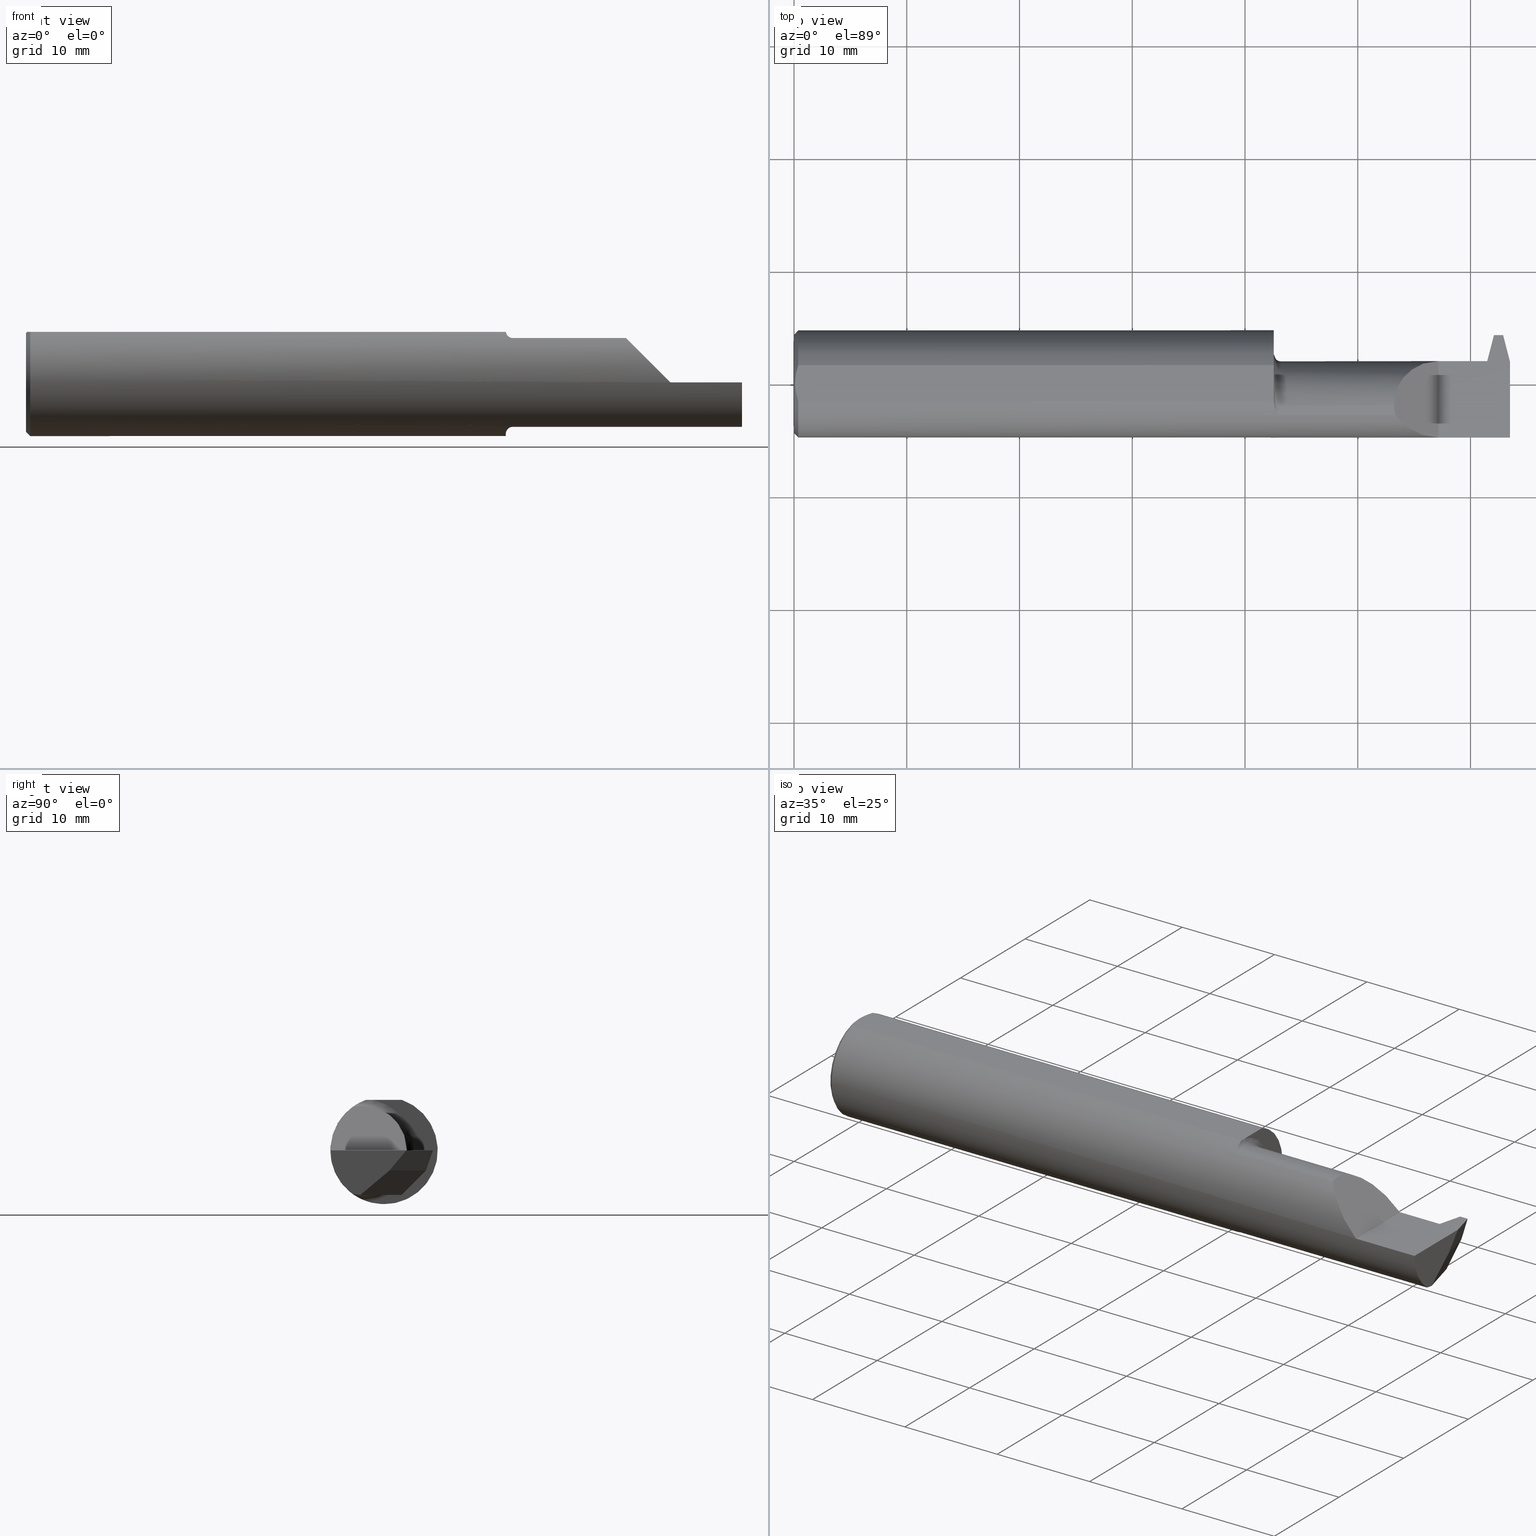
[diagram: canonical four-view strip — front | top / right | iso, engineering-drawing reading convention]
A machine part, canonical four-view strip (front | top / right | iso — engineering-drawing reading convention). The complete STEP part file that produces these views, byte-faithful:
ISO-10303-21;
HEADER;
FILE_DESCRIPTION (( 'STEP AP203' ),
    '1' );
FILE_NAME ('231039-FAT360750-10.STEP',
    '2024-05-23T22:19:45',
    ( '' ),
    ( '' ),
    'SwSTEP 2.0',
    'SolidWorks 2022',
    '' );
FILE_SCHEMA (( 'CONFIG_CONTROL_DESIGN' ));
ENDSEC;

DATA;
#1 = EDGE_CURVE ( 'NONE', #776, #972, #684, .T. ) ;
#2 = VERTEX_POINT ( 'NONE', #161 ) ;
#3 = CARTESIAN_POINT ( 'NONE',  ( 1.697842917297106347, -0.1111655275381357721, -0.1508053314282012392 ) ) ;
#4 = FACE_OUTER_BOUND ( 'NONE', #219, .T. ) ;
#5 = FACE_OUTER_BOUND ( 'NONE', #10, .T. ) ;
#6 = CIRCLE ( 'NONE', #807, 0.1873499999999999888 ) ;
#7 = AXIS2_PLACEMENT_3D ( 'NONE', #136, #528, #61 ) ;
#8 = LINE ( 'NONE', #12, #487 ) ;
#9 = ORIENTED_EDGE ( 'NONE', *, *, #323, .T. ) ;
#10 = EDGE_LOOP ( 'NONE', ( #814, #64, #597 ) ) ;
#11 = EDGE_CURVE ( 'NONE', #972, #938, #158, .T. ) ;
#12 = CARTESIAN_POINT ( 'NONE',  ( 0.01500000000000079568, 2.294375778202566330E-17, 0.1873499999999999888 ) ) ;
#13 = DIRECTION ( 'NONE',  ( -0.9474803064293680910, -0.2450350680735338127, 0.2055210070593990190 ) ) ;
#14 = CARTESIAN_POINT ( 'NONE',  ( 0.000000000000000000, 0.000000000000000000, 0.000000000000000000 ) ) ;
#15 = ORIENTED_EDGE ( 'NONE', *, *, #164, .F. ) ;
#16 = CARTESIAN_POINT ( 'NONE',  ( 2.159365813042176008, 0.07944494647492639228, 0.09098418695782312104 ) ) ;
#17 = VERTEX_POINT ( 'NONE', #614 ) ;
#18 = FACE_OUTER_BOUND ( 'NONE', #951, .T. ) ;
#19 = EDGE_CURVE ( 'NONE', #285, #581, #71, .T. ) ;
#20 = EDGE_CURVE ( 'NONE', #2, #94, #387, .T. ) ;
#21 = AXIS2_PLACEMENT_3D ( 'NONE', #978, #649, #200 ) ;
#22 = CARTESIAN_POINT ( 'NONE',  ( 2.397371745677374211, 0.06655594585375997074, -0.06235144369900125216 ) ) ;
#23 = LINE ( 'NONE', #330, #449 ) ;
#24 = ADVANCED_FACE ( 'NONE', ( #4 ), #837, .F. ) ;
#25 = DIRECTION ( 'NONE',  ( -1.000000000000000000, -0.000000000000000000, -0.000000000000000000 ) ) ;
#26 = PLANE ( 'NONE',  #964 ) ;
#27 = ADVANCED_FACE ( 'NONE', ( #470 ), #763, .T. ) ;
#28 = CARTESIAN_POINT ( 'NONE',  ( 2.500000000000000000, -0.1873499999999999888, -4.469813191451678053E-17 ) ) ;
#29 = DIRECTION ( 'NONE',  ( 0.000000000000000000, 0.000000000000000000, -1.000000000000000000 ) ) ;
#30 = ORIENTED_EDGE ( 'NONE', *, *, #688, .T. ) ;
#31 = CIRCLE ( 'NONE', #486, 0.1723499999999993371 ) ;
#32 = CC_DESIGN_DATE_AND_TIME_ASSIGNMENT ( #263, #643, ( #180 ) ) ;
#33 = DIRECTION ( 'NONE',  ( -1.000000000000000000, 0.000000000000000000, -0.000000000000000000 ) ) ;
#34 = ORIENTED_EDGE ( 'NONE', *, *, #489, .F. ) ;
#35 = CARTESIAN_POINT ( 'NONE',  ( 0.01500000000000079568, 0.000000000000000000, 0.000000000000000000 ) ) ;
#36 = CARTESIAN_POINT ( 'NONE',  ( 2.419999999999999929, -0.02721703491517181786, -0.1473370885830947163 ) ) ;
#37 = ORIENTED_EDGE ( 'NONE', *, *, #251, .F. ) ;
#38 = DIRECTION ( 'NONE',  ( -1.000000000000000000, -0.000000000000000000, -0.000000000000000000 ) ) ;
#39 = CARTESIAN_POINT ( 'NONE',  ( 1.677871177471788711, -0.08285827945689638874, 0.1680807655869951678 ) ) ;
#40 = EDGE_CURVE ( 'NONE', #878, #945, #382, .T. ) ;
#41 = ORIENTED_EDGE ( 'NONE', *, *, #577, .F. ) ;
#42 = ADVANCED_FACE ( 'NONE', ( #465 ), #703, .F. ) ;
#43 = CIRCLE ( 'NONE', #730, 0.1549999999999999989 ) ;
#44 = FACE_OUTER_BOUND ( 'NONE', #663, .T. ) ;
#45 = DIRECTION ( 'NONE',  ( -1.000000000000000000, 0.000000000000000000, 0.000000000000000000 ) ) ;
#46 = ORIENTED_EDGE ( 'NONE', *, *, #732, .T. ) ;
#47 =( LENGTH_UNIT ( ) NAMED_UNIT ( * ) SI_UNIT ( $, .METRE. ) );
#48 = DIRECTION ( 'NONE',  ( -1.000000000000000000, -0.000000000000000000, -0.000000000000000000 ) ) ;
#49 = EDGE_LOOP ( 'NONE', ( #676, #80, #620, #942, #642, #980 ) ) ;
#50 = LENGTH_MEASURE_WITH_UNIT ( LENGTH_MEASURE( 0.02539999999999999897 ), #47 );
#51 = PRODUCT ( '231039-FAT360750-10', '231039-FAT360750-10', '', ( #725 ) ) ;
#52 = EDGE_CURVE ( 'NONE', #565, #119, #23, .T. ) ;
#53 = EDGE_CURVE ( 'NONE', #17, #401, #796, .T. ) ;
#54 = CARTESIAN_POINT ( 'NONE',  ( 2.410465799823614308, 0.07964999999999992919, 0.000000000000000000 ) ) ;
#55 = ORIENTED_EDGE ( 'NONE', *, *, #881, .F. ) ;
#56 = PLANE ( 'NONE',  #666 ) ;
#57 = EDGE_LOOP ( 'NONE', ( #585, #715, #95, #55, #364 ) ) ;
#58 = DIRECTION ( 'NONE',  ( 0.000000000000000000, 0.000000000000000000, 1.000000000000000000 ) ) ;
#59 = CARTESIAN_POINT ( 'NONE',  ( 1.692178388317598037, -0.1087237717143361843, 0.1525793417461625279 ) ) ;
#60 = VERTEX_POINT ( 'NONE', #319 ) ;
#61 = DIRECTION ( 'NONE',  ( 0.000000000000000000, 0.000000000000000000, -1.000000000000000000 ) ) ;
#62 = CC_DESIGN_APPROVAL ( #929, ( #790 ) ) ;
#63 = APPROVAL_STATUS ( 'not_yet_approved' ) ;
#64 = ORIENTED_EDGE ( 'NONE', *, *, #312, .T. ) ;
#65 =( BOUNDED_CURVE ( )  B_SPLINE_CURVE ( 3, ( #464, #16, #677, #851 ),
 .UNSPECIFIED., .F., .T. ) 
 B_SPLINE_CURVE_WITH_KNOTS ( ( 4, 4 ),
 ( 4.714647046819741227, 6.283185307179586232 ),
 .UNSPECIFIED. ) 
 CURVE ( )  GEOMETRIC_REPRESENTATION_ITEM ( )  RATIONAL_B_SPLINE_CURVE ( ( 1.000000000000000000, 0.8052697849207437475, 0.8052697849207437475, 1.000000000000000000 ) ) 
 REPRESENTATION_ITEM ( '' )  );
#66 = CARTESIAN_POINT ( 'NONE',  ( 2.095349999999999380, -0.07535000000000005582, 0.1549999999999999989 ) ) ;
#67 = ORIENTED_EDGE ( 'NONE', *, *, #578, .F. ) ;
#68 = DIRECTION ( 'NONE',  ( -0.1200238624775783192, 0.3232146245633335524, 0.9386834284807347162 ) ) ;
#69 = ADVANCED_FACE ( 'NONE', ( #855 ), #26, .F. ) ;
#70 = CARTESIAN_POINT ( 'NONE',  ( 2.047499999999999876, -0.1111655275381552427, 0.1508053314281814494 ) ) ;
#71 = LINE ( 'NONE', #548, #933 ) ;
#72 = ORIENTED_EDGE ( 'NONE', *, *, #115, .F. ) ;
#73 = AXIS2_PLACEMENT_3D ( 'NONE', #695, #13, #155 ) ;
#74 = DIRECTION ( 'NONE',  ( 0.000000000000000000, 0.000000000000000000, -1.000000000000000000 ) ) ;
#75 = ORIENTED_EDGE ( 'NONE', *, *, #502, .F. ) ;
#76 = CARTESIAN_POINT ( 'NONE',  ( 2.249999999999999556, 0.1706500000000036044, -4.469813191451678053E-17 ) ) ;
#77 = VECTOR ( 'NONE', #280, 39.37007874015748854 ) ;
#78 = AXIS2_PLACEMENT_3D ( 'NONE', #802, #914, #469 ) ;
#79 = AXIS2_PLACEMENT_3D ( 'NONE', #810, #893, #884 ) ;
#80 = ORIENTED_EDGE ( 'NONE', *, *, #866, .T. ) ;
#81 = UNCERTAINTY_MEASURE_WITH_UNIT (LENGTH_MEASURE( 1.000000000000000082E-05 ), #582, 'distance_accuracy_value', 'NONE');
#82 = CARTESIAN_POINT ( 'NONE',  ( 2.416847974081296702, 0.06494971824451233056, -0.06999999999999663436 ) ) ;
#83 = CARTESIAN_POINT ( 'NONE',  ( 1.675000000000000044, 0.06655594585375997074, -0.06235144369900125216 ) ) ;
#84 = LINE ( 'NONE', #670, #289 ) ;
#85 = VERTEX_POINT ( 'NONE', #937 ) ;
#86 = ADVANCED_FACE ( 'NONE', ( #335 ), #261, .F. ) ;
#87 = FACE_OUTER_BOUND ( 'NONE', #517, .T. ) ;
#88 = DIRECTION ( 'NONE',  ( 0.000000000000000000, -0.7071067811865434649, -0.7071067811865515695 ) ) ;
#89 = CARTESIAN_POINT ( 'NONE',  ( 2.416847974081296702, 0.06494971824451233056, -0.06999999999999663436 ) ) ;
#90 = VERTEX_POINT ( 'NONE', #932 ) ;
#91 = DESIGN_CONTEXT ( 'detailed design', #442, 'design' ) ;
#92 = APPROVAL ( #268, 'UNSPECIFIED' ) ;
#93 = CARTESIAN_POINT ( 'NONE',  ( 2.499398441549230743, -0.07977942606453146401, -0.1549525290705621727 ) ) ;
#94 = VERTEX_POINT ( 'NONE', #499 ) ;
#95 = ORIENTED_EDGE ( 'NONE', *, *, #925, .F. ) ;
#96 = VECTOR ( 'NONE', #48, 39.37007874015748143 ) ;
#97 = VECTOR ( 'NONE', #672, 39.37007874015748143 ) ;
#98 = LINE ( 'NONE', #405, #144 ) ;
#99 = EDGE_CURVE ( 'NONE', #788, #541, #184, .T. ) ;
#100 = CARTESIAN_POINT ( 'NONE',  ( 2.410128570000003911, 0.1465470670697248956, -0.06999999999999863276 ) ) ;
#101 = DIRECTION ( 'NONE',  ( 1.000000000000000000, 0.000000000000000000, 0.000000000000000000 ) ) ;
#102 = EDGE_CURVE ( 'NONE', #892, #267, #174, .T. ) ;
#103 = B_SPLINE_CURVE_WITH_KNOTS ( 'NONE', 3,
 ( #519, #526, #744, #59, #372, #655, #949, #822, #723, #39, #352, #877 ),
 .UNSPECIFIED., .F., .F.,
 ( 4, 2, 2, 2, 2, 4 ),
 ( 0.000000000000000000, 0.0001618095382699952353, 0.0003236190765399904706, 0.0006472381530799941685, 0.0009708572296199979206, 0.001294476306160001564 ),
 .UNSPECIFIED. ) ;
#104 = DIRECTION ( 'NONE',  ( -1.000000000000000000, -0.000000000000000000, -0.000000000000000000 ) ) ;
#105 = DIRECTION ( 'NONE',  ( 0.9474803064293683130, -0.2450350680735326470, 0.2055210070593990190 ) ) ;
#106 = DATE_AND_TIME ( #114, #716 ) ;
#107 = FACE_OUTER_BOUND ( 'NONE', #171, .T. ) ;
#108 = ORIENTED_EDGE ( 'NONE', *, *, #647, .F. ) ;
#109 = CC_DESIGN_APPROVAL ( #92, ( #291 ) ) ;
#110 = VECTOR ( 'NONE', #120, 39.37007874015748854 ) ;
#111 = CARTESIAN_POINT ( 'NONE',  ( 2.410465799823614308, 0.07964999999999992919, 0.000000000000000000 ) ) ;
#112 = CARTESIAN_POINT ( 'NONE',  ( 1.675210246786176693, -0.06325108694718213631, 0.1763499999999999790 ) ) ;
#113 = ORIENTED_EDGE ( 'NONE', *, *, #478, .T. ) ;
#114 = CALENDAR_DATE ( 2024, 23, 5 ) ;
#115 = EDGE_CURVE ( 'NONE', #242, #692, #787, .T. ) ;
#116 = ADVANCED_FACE ( 'NONE', ( #409 ), #710, .F. ) ;
#117 = DIRECTION ( 'NONE',  ( 1.000000000000000000, 0.000000000000000000, 0.000000000000000000 ) ) ;
#118 = DIMENSIONAL_EXPONENTS ( 1.000000000000000000, 0.000000000000000000, 0.000000000000000000, 0.000000000000000000, 0.000000000000000000, 0.000000000000000000, 0.000000000000000000 ) ;
#119 = VERTEX_POINT ( 'NONE', #860 ) ;
#120 = DIRECTION ( 'NONE',  ( 0.000000000000000000, -0.6426264403010707449, -0.7661796514042735762 ) ) ;
#121 = CARTESIAN_POINT ( 'NONE',  ( 0.000000000000000000, 0.000000000000000000, 0.000000000000000000 ) ) ;
#122 = CC_DESIGN_PERSON_AND_ORGANIZATION_ASSIGNMENT ( #721, #433, ( #291 ) ) ;
#123 = CARTESIAN_POINT ( 'NONE',  ( 2.431847974081296826, 0.06494971824451233056, -0.06999999999999663436 ) ) ;
#124 = ORIENTED_EDGE ( 'NONE', *, *, #797, .F. ) ;
#125 = PLANE ( 'NONE',  #416 ) ;
#126 = VECTOR ( 'NONE', #829, 39.37007874015748854 ) ;
#127 = ORIENTED_EDGE ( 'NONE', *, *, #317, .T. ) ;
#128 = DIRECTION ( 'NONE',  ( -0.000000000000000000, 0.000000000000000000, 1.000000000000000000 ) ) ;
#129 = ADVANCED_FACE ( 'NONE', ( #490 ), #863, .T. ) ;
#130 = PERSON_AND_ORGANIZATION ( #218, #921 ) ;
#131 = CARTESIAN_POINT ( 'NONE',  ( 0.01500000000000079568, 0.000000000000000000, -0.1873499999999999888 ) ) ;
#132 = VERTEX_POINT ( 'NONE', #36 ) ;
#133 = DIRECTION ( 'NONE',  ( 1.000000000000000000, 0.000000000000000000, 0.000000000000000000 ) ) ;
#134 = PLANE ( 'NONE',  #856 ) ;
#135 = ORIENTED_EDGE ( 'NONE', *, *, #489, .T. ) ;
#136 = CARTESIAN_POINT ( 'NONE',  ( 2.500000000000000000, 0.000000000000000000, 0.000000000000000000 ) ) ;
#137 = ORIENTED_EDGE ( 'NONE', *, *, #479, .T. ) ;
#138 = VECTOR ( 'NONE', #392, 39.37007874015748143 ) ;
#139 = CARTESIAN_POINT ( 'NONE',  ( 2.454573341866512770, 0.09348980020807433344, -0.1550000000000000266 ) ) ;
#140 = FACE_OUTER_BOUND ( 'NONE', #600, .T. ) ;
#141 = ORIENTED_EDGE ( 'NONE', *, *, #687, .F. ) ;
#142 = VECTOR ( 'NONE', #701, 39.37007874015748143 ) ;
#143 = DIRECTION ( 'NONE',  ( -0.000000000000000000, 0.000000000000000000, 1.000000000000000000 ) ) ;
#144 = VECTOR ( 'NONE', #633, 39.37007874015748143 ) ;
#145 = CC_DESIGN_SECURITY_CLASSIFICATION ( #790, ( #291 ) ) ;
#146 = ORIENTED_EDGE ( 'NONE', *, *, #834, .T. ) ;
#147 = EDGE_CURVE ( 'NONE', #904, #692, #568, .T. ) ;
#148 = LINE ( 'NONE', #752, #531 ) ;
#149 = ORIENTED_EDGE ( 'NONE', *, *, #20, .T. ) ;
#150 = DIRECTION ( 'NONE',  ( -0.000000000000000000, 5.672820889749761672E-16, 1.000000000000000000 ) ) ;
#151 = B_SPLINE_CURVE_WITH_KNOTS ( 'NONE', 3,
 ( #641, #941, #645, #792 ),
 .UNSPECIFIED., .F., .F.,
 ( 4, 4 ),
 ( 0.005496776235116787243, 0.007121625476792169465 ),
 .UNSPECIFIED. ) ;
#152 = VERTEX_POINT ( 'NONE', #564 ) ;
#153 = DIRECTION ( 'NONE',  ( 0.000000000000000000, -0.7660444431189792347, -0.6427876096865379196 ) ) ;
#154 = EDGE_CURVE ( 'NONE', #673, #241, #327, .T. ) ;
#155 = DIRECTION ( 'NONE',  ( 0.2503800040544336691, -0.9681476403781097417, 0.000000000000000000 ) ) ;
#156 = LINE ( 'NONE', #76, #861 ) ;
#157 = EDGE_LOOP ( 'NONE', ( #529, #573, #960, #303, #638 ) ) ;
#158 = CIRCLE ( 'NONE', #384, 0.1549999999999999989 ) ;
#159 = PLANE ( 'NONE',  #825 ) ;
#160 = VERTEX_POINT ( 'NONE', #637 ) ;
#161 = CARTESIAN_POINT ( 'NONE',  ( 2.419999999999999929, 0.06494971824451233056, -0.06999999999999663436 ) ) ;
#162 = CARTESIAN_POINT ( 'NONE',  ( 2.419999999999999929, 0.07964999999999992919, 0.000000000000000000 ) ) ;
#163 = VECTOR ( 'NONE', #68, 39.37007874015748143 ) ;
#164 = EDGE_CURVE ( 'NONE', #852, #281, #431, .T. ) ;
#165 = ADVANCED_FACE ( 'NONE', ( #107 ), #414, .T. ) ;
#166 = ORIENTED_EDGE ( 'NONE', *, *, #831, .T. ) ;
#167 = CARTESIAN_POINT ( 'NONE',  ( 2.096754579645089045, -0.09941754239787796432, 0.1535954203549101948 ) ) ;
#168 = CARTESIAN_POINT ( 'NONE',  ( 1.676478687487613639, -0.07534999999999991704, 0.1715295892841814940 ) ) ;
#169 = ORIENTED_EDGE ( 'NONE', *, *, #612, .F. ) ;
#170 = CARTESIAN_POINT ( 'NONE',  ( 2.250000000000000000, 0.07964960483820594794, 0.0003499999999991848933 ) ) ;
#171 = EDGE_LOOP ( 'NONE', ( #665, #742, #678 ) ) ;
#172 = EDGE_CURVE ( 'NONE', #345, #852, #151, .T. ) ;
#173 = DIRECTION ( 'NONE',  ( 0.000000000000000000, 0.000000000000000000, 1.000000000000000000 ) ) ;
#174 = LINE ( 'NONE', #339, #186 ) ;
#175 = FACE_OUTER_BOUND ( 'NONE', #49, .T. ) ;
#176 = CIRCLE ( 'NONE', #664, 0.1723499999999993371 ) ;
#177 = VECTOR ( 'NONE', #610, 39.37007874015748143 ) ;
#178 = CARTESIAN_POINT ( 'NONE',  ( 2.500000000000000000, -0.08199235869078609629, -0.1548576090188110155 ) ) ;
#179 = DIRECTION ( 'NONE',  ( 0.2503800040544325034, 0.9681476403781099638, 0.000000000000000000 ) ) ;
#180 = PRODUCT_DEFINITION ( 'UNKNOWN', '', #291, #91 ) ;
#181 = CARTESIAN_POINT ( 'NONE',  ( 2.500000000000000000, 0.06325108694718213631, 0.1763499999999999790 ) ) ;
#182 = ORIENTED_EDGE ( 'NONE', *, *, #797, .T. ) ;
#183 = CARTESIAN_POINT ( 'NONE',  ( 2.420465799823614539, 0.07964999999999992919, 0.000000000000000000 ) ) ;
#184 = LINE ( 'NONE', #181, #621 ) ;
#185 = ORIENTED_EDGE ( 'NONE', *, *, #40, .F. ) ;
#186 = VECTOR ( 'NONE', #117, 39.37007874015748143 ) ;
#187 = LOCAL_TIME ( 15, 19, 45.00000000000000000, #940 ) ;
#188 = VECTOR ( 'NONE', #496, 39.37007874015748143 ) ;
#189 = EDGE_CURVE ( 'NONE', #401, #60, #366, .T. ) ;
#190 = COORDINATED_UNIVERSAL_TIME_OFFSET ( 8, 0, .BEHIND. ) ;
#191 = CIRCLE ( 'NONE', #652, 0.1549999999999999989 ) ;
#192 = CARTESIAN_POINT ( 'NONE',  ( 1.675000000000000044, -0.03928509323455842139, 0.1763499999999999790 ) ) ;
#193 = ORIENTED_EDGE ( 'NONE', *, *, #223, .F. ) ;
#194 = CARTESIAN_POINT ( 'NONE',  ( 2.397371745677374211, 0.06655594585375997074, -0.06235144369900125216 ) ) ;
#195 = DIRECTION ( 'NONE',  ( -1.000000000000000000, -0.000000000000000000, -0.000000000000000000 ) ) ;
#196 = EDGE_LOOP ( 'NONE', ( #694, #534, #429, #321, #75, #234, #415, #41, #185, #606, #509, #9, #527 ) ) ;
#197 = CARTESIAN_POINT ( 'NONE',  ( 2.250000000000000000, 0.2000000000000000111, -4.469813191451678053E-17 ) ) ;
#198 = PERSON_AND_ORGANIZATION_ROLE ( 'classification_officer' ) ;
#199 = DIRECTION ( 'NONE',  ( 0.000000000000000000, -0.7660444431189792347, -0.6427876096865379196 ) ) ;
#200 = DIRECTION ( 'NONE',  ( 0.000000000000000000, 0.7660444431189792347, 0.6427876096865379196 ) ) ;
#201 = ORIENTED_EDGE ( 'NONE', *, *, #224, .F. ) ;
#202 = CARTESIAN_POINT ( 'NONE',  ( 2.410465799823614308, 0.07964999999999992919, 0.000000000000000000 ) ) ;
#203 = AXIS2_PLACEMENT_3D ( 'NONE', #324, #761, #88 ) ;
#204 = AXIS2_PLACEMENT_3D ( 'NONE', #216, #195, #355 ) ;
#205 = VECTOR ( 'NONE', #623, 39.37007874015748143 ) ;
#206 = CARTESIAN_POINT ( 'NONE',  ( 2.500000000000000000, -0.03634933712599985184, -0.1549999999999999434 ) ) ;
#207 = VECTOR ( 'NONE', #777, 39.37007874015748143 ) ;
#208 = EDGE_LOOP ( 'NONE', ( #497, #425, #724, #37, #883, #443, #524, #457 ) ) ;
#209 = CARTESIAN_POINT ( 'NONE',  ( 1.675000000000000044, -0.02721703491517181786, -0.1473370885830947163 ) ) ;
#210 = APPROVAL ( #412, 'UNSPECIFIED' ) ;
#211 = DIRECTION ( 'NONE',  ( 0.000000000000000000, 0.000000000000000000, -1.000000000000000000 ) ) ;
#212 = PLANE ( 'NONE',  #681 ) ;
#213 = VERTEX_POINT ( 'NONE', #344 ) ;
#214 = LINE ( 'NONE', #741, #768 ) ;
#215 = ORIENTED_EDGE ( 'NONE', *, *, #588, .F. ) ;
#216 = CARTESIAN_POINT ( 'NONE',  ( 2.500000000000000000, 0.000000000000000000, 0.000000000000000000 ) ) ;
#217 = CARTESIAN_POINT ( 'NONE',  ( 2.431847974081296826, 0.06494971824451233056, -0.06999999999999663436 ) ) ;
#218 = PERSON ( 'UNSPECIFIED', 'UNSPECIFIED', 'UNSPECIFIED', ('UNSPECIFIED'), ('UNSPECIFIED'), ('UNSPECIFIED') ) ;
#219 = EDGE_LOOP ( 'NONE', ( #611, #896, #975, #554 ) ) ;
#220 = DIRECTION ( 'NONE',  ( 1.000000000000000000, 0.000000000000000000, 0.000000000000000000 ) ) ;
#221 = PERSON_AND_ORGANIZATION_ROLE ( 'design_supplier' ) ;
#222 = ORIENTED_EDGE ( 'NONE', *, *, #632, .T. ) ;
#223 = EDGE_CURVE ( 'NONE', #246, #241, #507, .T. ) ;
#224 = EDGE_CURVE ( 'NONE', #747, #377, #31, .T. ) ;
#225 = PLANE ( 'NONE',  #713 ) ;
#226 = ORIENTED_EDGE ( 'NONE', *, *, #239, .F. ) ;
#227 = AXIS2_PLACEMENT_3D ( 'NONE', #35, #347, #560 ) ;
#228 = CARTESIAN_POINT ( 'NONE',  ( 2.467343299571556958, 0.1077883685598375468, -0.1825634338169684623 ) ) ;
#229 = AXIS2_PLACEMENT_3D ( 'NONE', #402, #775, #250 ) ;
#230 = ORIENTED_EDGE ( 'NONE', *, *, #935, .F. ) ;
#231 = CARTESIAN_POINT ( 'NONE',  ( 1.675000000000000044, 0.06325108694718213631, 0.1763499999999999790 ) ) ;
#232 = EDGE_LOOP ( 'NONE', ( #368, #298, #650, #766 ) ) ;
#233 = PLANE ( 'NONE',  #562 ) ;
#234 = ORIENTED_EDGE ( 'NONE', *, *, #898, .T. ) ;
#235 = CARTESIAN_POINT ( 'NONE',  ( 0.01500000000000079568, 0.06325108694718213631, 0.1763499999999999790 ) ) ;
#236 = ORIENTED_EDGE ( 'NONE', *, *, #239, .T. ) ;
#237 = DIRECTION ( 'NONE',  ( 1.000000000000000000, 0.000000000000000000, 0.000000000000000000 ) ) ;
#238 = EDGE_CURVE ( 'NONE', #565, #267, #890, .T. ) ;
#239 = EDGE_CURVE ( 'NONE', #401, #852, #358, .T. ) ;
#240 = CARTESIAN_POINT ( 'NONE',  ( 1.677865082443892764, -0.08283314709417988198, -0.1680932348365286877 ) ) ;
#241 = VERTEX_POINT ( 'NONE', #947 ) ;
#242 = VERTEX_POINT ( 'NONE', #583 ) ;
#243 = DIRECTION ( 'NONE',  ( 0.000000000000000000, 0.000000000000000000, -1.000000000000000000 ) ) ;
#244 = AXIS2_PLACEMENT_3D ( 'NONE', #952, #441, #961 ) ;
#245 = EDGE_CURVE ( 'NONE', #673, #972, #43, .T. ) ;
#246 = VERTEX_POINT ( 'NONE', #593 ) ;
#247 = DIRECTION ( 'NONE',  ( -1.000000000000000000, -0.000000000000000000, -0.000000000000000000 ) ) ;
#248 = ORIENTED_EDGE ( 'NONE', *, *, #632, .F. ) ;
#249 = CARTESIAN_POINT ( 'NONE',  ( 1.675439896557285646, -0.06737885671737320337, 0.1748695014197203801 ) ) ;
#250 = DIRECTION ( 'NONE',  ( 0.000000000000000000, -0.2055210070593990190, -0.9786527043120508695 ) ) ;
#251 = EDGE_CURVE ( 'NONE', #132, #911, #662, .T. ) ;
#252 = EDGE_CURVE ( 'NONE', #589, #911, #885, .T. ) ;
#253 = CARTESIAN_POINT ( 'NONE',  ( 2.476000000000000423, 0.1706499999999999406, 0.000000000000000000 ) ) ;
#254 = DIRECTION ( 'NONE',  ( 0.000000000000000000, 0.000000000000000000, -1.000000000000000000 ) ) ;
#255 = PERSON_AND_ORGANIZATION ( #218, #921 ) ;
#256 = DIRECTION ( 'NONE',  ( 0.000000000000000000, 0.000000000000000000, 1.000000000000000000 ) ) ;
#257 = CARTESIAN_POINT ( 'NONE',  ( 2.431847974081296826, 0.06494971824451233056, -0.06999999999999663436 ) ) ;
#258 = VECTOR ( 'NONE', #153, 39.37007874015748143 ) ;
#259 = VECTOR ( 'NONE', #485, 39.37007874015748143 ) ;
#260 = CARTESIAN_POINT ( 'NONE',  ( 2.250000000000000000, 0.2000000000000000111, 0.0003499999999991848933 ) ) ;
#261 = PLANE ( 'NONE',  #698 ) ;
#262 = ORIENTED_EDGE ( 'NONE', *, *, #799, .F. ) ;
#263 = DATE_AND_TIME ( #653, #187 ) ;
#264 = DIRECTION ( 'NONE',  ( 0.2013133534504512878, 0.2013133534504512878, 0.9586166425871539554 ) ) ;
#265 = DIRECTION ( 'NONE',  ( 1.000000000000000000, 0.000000000000000000, 0.000000000000000000 ) ) ;
#266 = EDGE_CURVE ( 'NONE', #900, #770, #307, .T. ) ;
#267 = VERTEX_POINT ( 'NONE', #876 ) ;
#268 = APPROVAL_STATUS ( 'not_yet_approved' ) ;
#269 = DIRECTION ( 'NONE',  ( -1.000000000000000000, -0.000000000000000000, -0.000000000000000000 ) ) ;
#270 = CARTESIAN_POINT ( 'NONE',  ( 1.675000000000000044, -0.04727406520530673395, 0.1763499999999999790 ) ) ;
#271 = EDGE_LOOP ( 'NONE', ( #34, #367, #828, #536 ) ) ;
#272 = CARTESIAN_POINT ( 'NONE',  ( 1.699999999999999956, -0.1111655275381552427, 0.1508053314281814494 ) ) ;
#273 =( BOUNDED_CURVE ( )  B_SPLINE_CURVE ( 3, ( #22, #420, #567, #111 ),
 .UNSPECIFIED., .F., .T. ) 
 B_SPLINE_CURVE_WITH_KNOTS ( ( 4, 4 ),
 ( 1.156804228221840702, 1.570796326794896780 ),
 .UNSPECIFIED. ) 
 CURVE ( )  GEOMETRIC_REPRESENTATION_ITEM ( )  RATIONAL_B_SPLINE_CURVE ( ( 1.000000000000000000, 0.9857684695413670983, 0.9857684695413670983, 1.000000000000000000 ) ) 
 REPRESENTATION_ITEM ( '' )  );
#274 = AXIS2_PLACEMENT_3D ( 'NONE', #436, #297, #45 ) ;
#275 = DIRECTION ( 'NONE',  ( 1.000000000000000000, -0.000000000000000000, -0.000000000000000000 ) ) ;
#276 = ORIENTED_EDGE ( 'NONE', *, *, #245, .F. ) ;
#277 = PERSON_AND_ORGANIZATION ( #218, #921 ) ;
#278 = ADVANCED_FACE ( 'NONE', ( #44 ), #514, .T. ) ;
#279 = ADVANCED_FACE ( 'NONE', ( #812 ), #134, .F. ) ;
#280 = DIRECTION ( 'NONE',  ( -0.2503800040544377770, -0.9681476403781087425, 5.540024868260879370E-16 ) ) ;
#281 = VERTEX_POINT ( 'NONE', #131 ) ;
#282 = CARTESIAN_POINT ( 'NONE',  ( 2.457165705651522369, 0.06154706706972455643, -0.1549999999999999989 ) ) ;
#283 = DIRECTION ( 'NONE',  ( 0.000000000000000000, 0.000000000000000000, -1.000000000000000000 ) ) ;
#284 = DIRECTION ( 'NONE',  ( 0.03504448777032594803, -0.7066724431718360844, -0.7066724431718443000 ) ) ;
#285 = VERTEX_POINT ( 'NONE', #446 ) ;
#286 = PERSON_AND_ORGANIZATION ( #218, #921 ) ;
#287 = VECTOR ( 'NONE', #363, 39.37007874015748143 ) ;
#288 = DIRECTION ( 'NONE',  ( -0.2503800040544398309, 0.9681476403781081874, -5.457204653867212462E-16 ) ) ;
#289 = VECTOR ( 'NONE', #311, 39.37007874015748854 ) ;
#290 = DIRECTION ( 'NONE',  ( -0.2945363905204701482, 0.000000000000000000, -0.9556402642517597412 ) ) ;
#291 = PRODUCT_DEFINITION_FORMATION_WITH_SPECIFIED_SOURCE ( 'ANY', '', #51, .NOT_KNOWN. ) ;
#292 = ORIENTED_EDGE ( 'NONE', *, *, #333, .F. ) ;
#293 = DIRECTION ( 'NONE',  ( 0.000000000000000000, 0.000000000000000000, 1.000000000000000000 ) ) ;
#294 = VERTEX_POINT ( 'NONE', #427 ) ;
#295 = ORIENTED_EDGE ( 'NONE', *, *, #172, .T. ) ;
#296 = DIRECTION ( 'NONE',  ( 1.000000000000000000, 0.000000000000000000, 0.000000000000000000 ) ) ;
#297 = DIRECTION ( 'NONE',  ( -0.000000000000000000, 0.000000000000000000, -1.000000000000000000 ) ) ;
#298 = ORIENTED_EDGE ( 'NONE', *, *, #147, .F. ) ;
#299 = CARTESIAN_POINT ( 'NONE',  ( 2.250000000000000000, -0.1873496730715054903, 0.0003499999999991848933 ) ) ;
#300 = EDGE_CURVE ( 'NONE', #246, #541, #6, .T. ) ;
#301 = ORIENTED_EDGE ( 'NONE', *, *, #935, .T. ) ;
#302 = FACE_OUTER_BOUND ( 'NONE', #57, .T. ) ;
#303 = ORIENTED_EDGE ( 'NONE', *, *, #404, .T. ) ;
#304 = CARTESIAN_POINT ( 'NONE',  ( 2.099544668571818207, -0.1111655275381547570, 0.1508053314281816715 ) ) ;
#305 = CC_DESIGN_PERSON_AND_ORGANIZATION_ASSIGNMENT ( #130, #198, ( #790 ) ) ;
#306 = ORIENTED_EDGE ( 'NONE', *, *, #550, .F. ) ;
#307 = CIRCLE ( 'NONE', #559, 0.1549999999999999434 ) ;
#308 = CARTESIAN_POINT ( 'NONE',  ( 1.699999999999999956, -0.1111655275381552427, -0.1508053314281814494 ) ) ;
#309 = ORIENTED_EDGE ( 'NONE', *, *, #323, .F. ) ;
#310 = VECTOR ( 'NONE', #689, 39.37007874015748143 ) ;
#311 = DIRECTION ( 'NONE',  ( 0.03504448777032623252, 0.7066724431718360844, 0.7066724431718441890 ) ) ;
#312 = EDGE_CURVE ( 'NONE', #972, #17, #385, .T. ) ;
#313 = CARTESIAN_POINT ( 'NONE',  ( 1.679948053471882696, -0.09007176591159221646, -0.1643281559590496765 ) ) ;
#314 = DIRECTION ( 'NONE',  ( 0.000000000000000000, -0.7660444431189792347, -0.6427876096865379196 ) ) ;
#315 = DIRECTION ( 'NONE',  ( 0.000000000000000000, -1.000000000000000000, 5.672820889749761672E-16 ) ) ;
#316 = ORIENTED_EDGE ( 'NONE', *, *, #224, .T. ) ;
#317 = EDGE_CURVE ( 'NONE', #892, #589, #739, .T. ) ;
#318 = CARTESIAN_POINT ( 'NONE',  ( 1.676478687487605423, -0.07534999999994895781, -0.1715295892842039482 ) ) ;
#319 = CARTESIAN_POINT ( 'NONE',  ( 1.675000000000000044, -0.03928509323455842139, 0.1763499999999999790 ) ) ;
#320 = LINE ( 'NONE', #228, #163 ) ;
#321 = ORIENTED_EDGE ( 'NONE', *, *, #1, .F. ) ;
#322 = CARTESIAN_POINT ( 'NONE',  ( 0.004000000000000698309, 2.159664630174422375E-17, 0.1763499999999999790 ) ) ;
#323 = EDGE_CURVE ( 'NONE', #160, #872, #764, .T. ) ;
#324 = CARTESIAN_POINT ( 'NONE',  ( 2.399999999999999911, 0.2165470670697227373, 0.000000000000000000 ) ) ;
#325 = DIRECTION ( 'NONE',  ( 0.2503800040544396088, -0.9681476403781081874, 0.000000000000000000 ) ) ;
#326 = CC_DESIGN_APPROVAL ( #210, ( #180 ) ) ;
#327 = CIRCLE ( 'NONE', #635, 0.02500000000000000486 ) ;
#328 = AXIS2_PLACEMENT_3D ( 'NONE', #590, #38, #293 ) ;
#329 = DIRECTION ( 'NONE',  ( -1.000000000000000000, -0.000000000000000000, -0.000000000000000000 ) ) ;
#330 = CARTESIAN_POINT ( 'NONE',  ( 2.500000000000000000, -0.07534999999999998643, -0.1549999999999999156 ) ) ;
#331 = LINE ( 'NONE', #928, #259 ) ;
#332 = ADVANCED_FACE ( 'NONE', ( #508 ), #125, .F. ) ;
#333 = EDGE_CURVE ( 'NONE', #594, #213, #806, .T. ) ;
#334 = CARTESIAN_POINT ( 'NONE',  ( 2.410465799823614308, 0.07964999999999992919, 0.000000000000000000 ) ) ;
#335 = FACE_OUTER_BOUND ( 'NONE', #646, .T. ) ;
#336 = ADVANCED_FACE ( 'NONE', ( #351 ), #648, .T. ) ;
#337 = PERSON_AND_ORGANIZATION ( #218, #921 ) ;
#338 = DIRECTION ( 'NONE',  ( -1.000000000000000000, -0.000000000000000000, -0.000000000000000000 ) ) ;
#339 = CARTESIAN_POINT ( 'NONE',  ( 2.500000000000000000, 0.06154706706972452174, -0.1549999999999999989 ) ) ;
#340 = CIRCLE ( 'NONE', #934, 0.1873499999999999888 ) ;
#341 = EDGE_CURVE ( 'NONE', #242, #589, #515, .T. ) ;
#342 = ADVANCED_FACE ( 'NONE', ( #967 ), #808, .F. ) ;
#343 = CARTESIAN_POINT ( 'NONE',  ( 1.699999999999999956, -0.07535000000000005582, 0.000000000000000000 ) ) ;
#344 = CARTESIAN_POINT ( 'NONE',  ( 2.500000000000000000, 0.07784888572242860960, 0.000000000000000000 ) ) ;
#345 = VERTEX_POINT ( 'NONE', #599 ) ;
#346 = APPROVAL_DATE_TIME ( #106, #210 ) ;
#347 = DIRECTION ( 'NONE',  ( 1.000000000000000000, -0.000000000000000000, -0.000000000000000000 ) ) ;
#348 = DIRECTION ( 'NONE',  ( -1.555079186017005008E-14, -0.9455185755993168462, 0.3255681544571566444 ) ) ;
#349 = ORIENTED_EDGE ( 'NONE', *, *, #834, .F. ) ;
#350 = CARTESIAN_POINT ( 'NONE',  ( 2.500000000000000000, 0.04569972933712732749, -0.03833024582787391416 ) ) ;
#351 = FACE_OUTER_BOUND ( 'NONE', #208, .T. ) ;
#352 = CARTESIAN_POINT ( 'NONE',  ( 1.677079511614913088, -0.07914804615830652035, 0.1698611728947836963 ) ) ;
#353 = ORIENTED_EDGE ( 'NONE', *, *, #115, .T. ) ;
#354 = VECTOR ( 'NONE', #481, 39.37007874015748143 ) ;
#355 = DIRECTION ( 'NONE',  ( 0.000000000000000000, 0.000000000000000000, 1.000000000000000000 ) ) ;
#356 = DIRECTION ( 'NONE',  ( 0.9277270166603230894, 0.2399265199903877488, -0.2859332921571721697 ) ) ;
#357 = EDGE_LOOP ( 'NONE', ( #759, #543, #306 ) ) ;
#358 = LINE ( 'NONE', #439, #96 ) ;
#359 = CARTESIAN_POINT ( 'NONE',  ( 2.250000000000000000, 0.2000000000000000111, -4.469813191451678053E-17 ) ) ;
#360 = ORIENTED_EDGE ( 'NONE', *, *, #52, .F. ) ;
#361 = APPLICATION_PROTOCOL_DEFINITION ( 'international standard', 'config_control_design', 1994, #930 ) ;
#362 = ADVANCED_FACE ( 'NONE', ( #428 ), #891, .T. ) ;
#363 = DIRECTION ( 'NONE',  ( -1.000000000000000000, 0.000000000000000000, 0.000000000000000000 ) ) ;
#364 = ORIENTED_EDGE ( 'NONE', *, *, #799, .T. ) ;
#365 = DIRECTION ( 'NONE',  ( -1.000000000000000000, -0.000000000000000000, -0.000000000000000000 ) ) ;
#366 = B_SPLINE_CURVE_WITH_KNOTS ( 'NONE', 3,
 ( #112, #944, #270, #192 ),
 .UNSPECIFIED., .F., .F.,
 ( 4, 4 ),
 ( 1.084202172485504434E-18, 0.0006087596641710211901 ),
 .UNSPECIFIED. ) ;
#367 = ORIENTED_EDGE ( 'NONE', *, *, #1, .T. ) ;
#368 = ORIENTED_EDGE ( 'NONE', *, *, #371, .F. ) ;
#369 = CARTESIAN_POINT ( 'NONE',  ( 2.470441869847911143, 0.1128821850179277386, -0.1550000000000000266 ) ) ;
#370 = ADVANCED_FACE ( 'NONE', ( #140 ), #212, .F. ) ;
#371 = EDGE_CURVE ( 'NONE', #692, #892, #447, .T. ) ;
#372 = CARTESIAN_POINT ( 'NONE',  ( 1.690624326360086416, -0.1074933921529483416, 0.1534530870474001274 ) ) ;
#373 = ORIENTED_EDGE ( 'NONE', *, *, #430, .T. ) ;
#374 = PERSON_AND_ORGANIZATION ( #218, #921 ) ;
#375 = ORIENTED_EDGE ( 'NONE', *, *, #631, .F. ) ;
#376 = LINE ( 'NONE', #760, #205 ) ;
#377 = VERTEX_POINT ( 'NONE', #668 ) ;
#378 = CARTESIAN_POINT ( 'NONE',  ( 2.135462471271803331, -0.1598910295916955993, 0.1148875287281965335 ) ) ;
#379 = CC_DESIGN_PERSON_AND_ORGANIZATION_ASSIGNMENT ( #491, #566, ( #180 ) ) ;
#380 = ORIENTED_EDGE ( 'NONE', *, *, #312, .F. ) ;
#381 = DIRECTION ( 'NONE',  ( 0.000000000000000000, 0.000000000000000000, -1.000000000000000000 ) ) ;
#382 = LINE ( 'NONE', #83, #138 ) ;
#383 = CARTESIAN_POINT ( 'NONE',  ( 2.099544668571818207, -0.1111655275381547570, 0.1508053314281816715 ) ) ;
#384 = AXIS2_PLACEMENT_3D ( 'NONE', #757, #397, #916 ) ;
#385 = CIRCLE ( 'NONE', #512, 0.02500000000000000486 ) ;
#386 = CARTESIAN_POINT ( 'NONE',  ( 1.684565425567609909, -0.1003007981862104464, -0.1582877711856871539 ) ) ;
#387 = LINE ( 'NONE', #539, #511 ) ;
#388 = CIRCLE ( 'NONE', #328, 0.1549999999999999989 ) ;
#389 = DIRECTION ( 'NONE',  ( -1.000000000000000000, 1.644683908014518177E-14, 0.000000000000000000 ) ) ;
#390 = EDGE_LOOP ( 'NONE', ( #72, #113, #823, #349 ) ) ;
#391 = ADVANCED_FACE ( 'NONE', ( #728 ), #813, .T. ) ;
#392 = DIRECTION ( 'NONE',  ( -1.000000000000000000, -0.000000000000000000, -0.000000000000000000 ) ) ;
#393 = CARTESIAN_POINT ( 'NONE',  ( 1.699999999999999956, -0.07535000000000005582, 0.000000000000000000 ) ) ;
#394 = ORIENTED_EDGE ( 'NONE', *, *, #619, .T. ) ;
#395 = EDGE_CURVE ( 'NONE', #938, #17, #103, .T. ) ;
#396 = CARTESIAN_POINT ( 'NONE',  ( 2.500000000000000000, 0.01913700171634113642, -0.06999999999999663436 ) ) ;
#397 = DIRECTION ( 'NONE',  ( 1.000000000000000000, 0.000000000000000000, 0.000000000000000000 ) ) ;
#398 = CARTESIAN_POINT ( 'NONE',  ( 2.459999999999999964, 0.1738055255122922804, -0.06999999999999663436 ) ) ;
#399 = ORIENTED_EDGE ( 'NONE', *, *, #866, .F. ) ;
#400 = CARTESIAN_POINT ( 'NONE',  ( 2.419999999999999929, -0.07535000000000005582, 0.000000000000000000 ) ) ;
#401 = VERTEX_POINT ( 'NONE', #954 ) ;
#402 = CARTESIAN_POINT ( 'NONE',  ( 2.420465799823614539, 0.07964999999999992919, 0.000000000000000000 ) ) ;
#403 = ADVANCED_FACE ( 'NONE', ( #504 ), #591, .T. ) ;
#404 = EDGE_CURVE ( 'NONE', #152, #770, #608, .T. ) ;
#405 = CARTESIAN_POINT ( 'NONE',  ( 0.01500000000000079568, 0.000000000000000000, -0.1873499999999999888 ) ) ;
#406 = DIRECTION ( 'NONE',  ( 0.000000000000000000, 0.000000000000000000, -1.000000000000000000 ) ) ;
#407 = CARTESIAN_POINT ( 'NONE',  ( 0.01500000000000016251, -0.06325108694718359348, 0.1763499999999999790 ) ) ;
#408 = CARTESIAN_POINT ( 'NONE',  ( 2.047499999999999876, -0.1111655275381552427, -0.1508053314281814494 ) ) ;
#409 = FACE_OUTER_BOUND ( 'NONE', #357, .T. ) ;
#410 = EDGE_CURVE ( 'NONE', #160, #872, #376, .T. ) ;
#411 = EDGE_CURVE ( 'NONE', #594, #904, #148, .T. ) ;
#412 = APPROVAL_STATUS ( 'not_yet_approved' ) ;
#413 = DIRECTION ( 'NONE',  ( -1.000000000000000000, -0.000000000000000000, -0.000000000000000000 ) ) ;
#414 = PLANE ( 'NONE',  #699 ) ;
#415 = ORIENTED_EDGE ( 'NONE', *, *, #982, .T. ) ;
#416 = AXIS2_PLACEMENT_3D ( 'NONE', #54, #973, #749 ) ;
#417 = AXIS2_PLACEMENT_3D ( 'NONE', #400, #269, #256 ) ;
#418 = TOROIDAL_SURFACE ( 'NONE', #625, 0.1799999999999999933, 0.02500000000000000139 ) ;
#419 =( BOUNDED_CURVE ( )  B_SPLINE_CURVE ( 3, ( #66, #922, #167, #460 ),
 .UNSPECIFIED., .F., .T. ) 
 B_SPLINE_CURVE_WITH_KNOTS ( ( 4, 4 ),
 ( 0.000000000000000000, 0.2331751639699329859 ),
 .UNSPECIFIED. ) 
 CURVE ( )  GEOMETRIC_REPRESENTATION_ITEM ( )  RATIONAL_B_SPLINE_CURVE ( ( 1.000000000000000000, 0.9954742418208948340, 0.9954742418208948340, 1.000000000000000000 ) ) 
 REPRESENTATION_ITEM ( '' )  );
#420 = CARTESIAN_POINT ( 'NONE',  ( 2.401513823449298535, 0.07522230237091669103, -0.04262764187959411366 ) ) ;
#421 = DIRECTION ( 'NONE',  ( 1.000000000000000000, 0.000000000000000000, 0.000000000000000000 ) ) ;
#422 = ORIENTED_EDGE ( 'NONE', *, *, #300, .T. ) ;
#423 = APPROVAL_DATE_TIME ( #867, #92 ) ;
#424 = CARTESIAN_POINT ( 'NONE',  ( 1.699999999999999956, -0.07535000000000005582, -0.1799999999999999933 ) ) ;
#425 = ORIENTED_EDGE ( 'NONE', *, *, #341, .T. ) ;
#426 = CARTESIAN_POINT ( 'NONE',  ( 2.500000000000000000, -0.1111655275381551039, -0.1508053314281814772 ) ) ;
#427 = CARTESIAN_POINT ( 'NONE',  ( 2.443999999999999506, 0.1706500000000004680, 0.000000000000000000 ) ) ;
#428 = FACE_OUTER_BOUND ( 'NONE', #505, .T. ) ;
#429 = ORIENTED_EDGE ( 'NONE', *, *, #245, .T. ) ;
#430 = EDGE_CURVE ( 'NONE', #788, #345, #849, .T. ) ;
#431 = CIRCLE ( 'NONE', #452, 0.1873499999999999888 ) ;
#432 = CIRCLE ( 'NONE', #227, 0.1873499999999999888 ) ;
#433 = PERSON_AND_ORGANIZATION_ROLE ( 'creator' ) ;
#434 = VECTOR ( 'NONE', #413, 39.37007874015748143 ) ;
#435 = CARTESIAN_POINT ( 'NONE',  ( 2.475314547023544254, 0.1733004499999999115, 0.000000000000000000 ) ) ;
#436 = CARTESIAN_POINT ( 'NONE',  ( 0.000000000000000000, 0.1000000000000000056, 0.1763499999999999790 ) ) ;
#437 = EDGE_LOOP ( 'NONE', ( #108, #844, #135, #819 ) ) ;
#438 = ORIENTED_EDGE ( 'NONE', *, *, #189, .T. ) ;
#439 = CARTESIAN_POINT ( 'NONE',  ( 2.500000000000000000, -0.06325108694718213631, 0.1763499999999999790 ) ) ;
#440 = ORIENTED_EDGE ( 'NONE', *, *, #532, .F. ) ;
#441 = DIRECTION ( 'NONE',  ( 0.000000000000000000, 0.000000000000000000, 1.000000000000000000 ) ) ;
#442 = APPLICATION_CONTEXT ( 'configuration controlled 3d designs of mechanical parts and assemblies' ) ;
#443 = ORIENTED_EDGE ( 'NONE', *, *, #410, .F. ) ;
#444 = CALENDAR_DATE ( 2024, 23, 5 ) ;
#445 = EDGE_CURVE ( 'NONE', #2, #242, #546, .T. ) ;
#446 = CARTESIAN_POINT ( 'NONE',  ( 2.250000000000000000, -0.1873499999999999888, -4.469813191451678053E-17 ) ) ;
#447 = LINE ( 'NONE', #959, #576 ) ;
#448 = EDGE_LOOP ( 'NONE', ( #848, #841, #604, #451, #771, #516 ) ) ;
#449 = VECTOR ( 'NONE', #923, 39.37007874015748143 ) ;
#450 = CALENDAR_DATE ( 2024, 23, 5 ) ;
#451 = ORIENTED_EDGE ( 'NONE', *, *, #252, .F. ) ;
#452 = AXIS2_PLACEMENT_3D ( 'NONE', #493, #722, #254 ) ;
#453 = AXIS2_PLACEMENT_3D ( 'NONE', #217, #735, #580 ) ;
#454 = DIRECTION ( 'NONE',  ( 0.2503800040544337246, -0.9681476403781097417, 0.000000000000000000 ) ) ;
#455 = VECTOR ( 'NONE', #133, 39.37007874015748143 ) ;
#456 = LINE ( 'NONE', #70, #310 ) ;
#457 = ORIENTED_EDGE ( 'NONE', *, *, #20, .F. ) ;
#458 = DIRECTION ( 'NONE',  ( 1.000000000000000000, 0.000000000000000000, 0.000000000000000000 ) ) ;
#459 = ORIENTED_EDGE ( 'NONE', *, *, #982, .F. ) ;
#460 = CARTESIAN_POINT ( 'NONE',  ( 2.099544668571818207, -0.1111655275381547570, 0.1508053314281816715 ) ) ;
#461 = CARTESIAN_POINT ( 'NONE',  ( 1.675000000000000044, -0.07535000000000005582, 0.1549999999999999989 ) ) ;
#462 = CARTESIAN_POINT ( 'NONE',  ( 2.095349999999999380, -0.07535000000000005582, 0.1549999999999999989 ) ) ;
#463 = ORIENTED_EDGE ( 'NONE', *, *, #750, .F. ) ;
#464 = CARTESIAN_POINT ( 'NONE',  ( 2.250000000000000000, 0.07964960483820594794, 0.0003499999999991848933 ) ) ;
#465 = FACE_OUTER_BOUND ( 'NONE', #232, .T. ) ;
#466 = CARTESIAN_POINT ( 'NONE',  ( 2.500000000000000000, -0.08199235869078609629, -0.1548576090188110155 ) ) ;
#467 = CC_DESIGN_DATE_AND_TIME_ASSIGNMENT ( #506, #738, ( #790 ) ) ;
#468 = ORIENTED_EDGE ( 'NONE', *, *, #537, .F. ) ;
#469 = DIRECTION ( 'NONE',  ( 0.000000000000000000, 0.000000000000000000, -1.000000000000000000 ) ) ;
#470 = FACE_OUTER_BOUND ( 'NONE', #736, .T. ) ;
#471 = DIRECTION ( 'NONE',  ( 0.000000000000000000, 0.000000000000000000, -1.000000000000000000 ) ) ;
#472 =( GEOMETRIC_REPRESENTATION_CONTEXT ( 3 ) GLOBAL_UNCERTAINTY_ASSIGNED_CONTEXT ( ( #81 ) ) GLOBAL_UNIT_ASSIGNED_CONTEXT ( ( #582, #737, #521 ) ) REPRESENTATION_CONTEXT ( 'NONE', 'WORKASPACE' ) );
#473 = EDGE_LOOP ( 'NONE', ( #755, #201, #660, #15, #968 ) ) ;
#474 = CARTESIAN_POINT ( 'NONE',  ( 1.686554031168355561, -0.1034518926464918220, -0.1562319468430166391 ) ) ;
#475 = EDGE_LOOP ( 'NONE', ( #915, #753, #803, #913 ) ) ;
#476 = LINE ( 'NONE', #696, #748 ) ;
#477 = VERTEX_POINT ( 'NONE', #603 ) ;
#478 = EDGE_CURVE ( 'NONE', #242, #602, #832, .T. ) ;
#479 = EDGE_CURVE ( 'NONE', #377, #345, #8, .T. ) ;
#480 = FACE_OUTER_BOUND ( 'NONE', #809, .T. ) ;
#481 = DIRECTION ( 'NONE',  ( -1.000000000000000000, -0.000000000000000000, -0.000000000000000000 ) ) ;
#482 = CC_DESIGN_PERSON_AND_ORGANIZATION_ASSIGNMENT ( #286, #221, ( #291 ) ) ;
#483 = LINE ( 'NONE', #931, #142 ) ;
#484 = DIRECTION ( 'NONE',  ( 0.000000000000000000, -1.000000000000000000, 0.000000000000000000 ) ) ;
#485 = DIRECTION ( 'NONE',  ( -0.000000000000000000, 1.000000000000000000, -0.000000000000000000 ) ) ;
#486 = AXIS2_PLACEMENT_3D ( 'NONE', #121, #895, #518 ) ;
#487 = VECTOR ( 'NONE', #843, 39.37007874015748143 ) ;
#488 = LINE ( 'NONE', #260, #779 ) ;
#489 = EDGE_CURVE ( 'NONE', #776, #740, #419, .T. ) ;
#490 = FACE_OUTER_BOUND ( 'NONE', #196, .T. ) ;
#491 = PERSON_AND_ORGANIZATION ( #218, #921 ) ;
#492 = DIRECTION ( 'NONE',  ( 0.000000000000000000, 0.000000000000000000, 1.000000000000000000 ) ) ;
#493 = CARTESIAN_POINT ( 'NONE',  ( 0.01500000000000079568, 0.000000000000000000, 0.000000000000000000 ) ) ;
#494 = ORIENTED_EDGE ( 'NONE', *, *, #266, .F. ) ;
#495 = CARTESIAN_POINT ( 'NONE',  ( 2.498238283139455618, -0.07534999999999998643, -0.1549999999999999156 ) ) ;
#496 = DIRECTION ( 'NONE',  ( -1.000000000000000000, 2.508392821400182517E-14, 2.508392821400210916E-14 ) ) ;
#497 = ORIENTED_EDGE ( 'NONE', *, *, #445, .T. ) ;
#498 = VECTOR ( 'NONE', #601, 39.37007874015748143 ) ;
#499 = CARTESIAN_POINT ( 'NONE',  ( 2.419999999999999929, 0.06139050547019142545, -0.07298653412621075587 ) ) ;
#500 = ORIENTED_EDGE ( 'NONE', *, *, #688, .F. ) ;
#501 = FACE_OUTER_BOUND ( 'NONE', #475, .T. ) ;
#502 = EDGE_CURVE ( 'NONE', #680, #776, #65, .T. ) ;
#503 = DIRECTION ( 'NONE',  ( -0.7071067811865469066, 0.000000000000000000, 0.7071067811865480168 ) ) ;
#504 = FACE_OUTER_BOUND ( 'NONE', #473, .T. ) ;
#505 = EDGE_LOOP ( 'NONE', ( #127, #720, #353, #616 ) ) ;
#506 = DATE_AND_TIME ( #450, #873 ) ;
#507 = B_SPLINE_CURVE_WITH_KNOTS ( 'NONE', 3,
 ( #579, #953, #965, #821 ),
 .UNSPECIFIED., .F., .F.,
 ( 4, 4 ),
 ( 0.000000000000000000, 0.0005353161947638540065 ),
 .UNSPECIFIED. ) ;
#508 = FACE_OUTER_BOUND ( 'NONE', #894, .T. ) ;
#509 = ORIENTED_EDGE ( 'NONE', *, *, #558, .T. ) ;
#510 = LINE ( 'NONE', #350, #110 ) ;
#511 = VECTOR ( 'NONE', #314, 39.37007874015748143 ) ;
#512 = AXIS2_PLACEMENT_3D ( 'NONE', #727, #654, #58 ) ;
#513 = AXIS2_PLACEMENT_3D ( 'NONE', #936, #329, #628 ) ;
#514 = CYLINDRICAL_SURFACE ( 'NONE', #204, 0.1873499999999999888 ) ;
#515 = LINE ( 'NONE', #123, #700 ) ;
#516 = ORIENTED_EDGE ( 'NONE', *, *, #102, .T. ) ;
#517 = EDGE_LOOP ( 'NONE', ( #845, #301, #422 ) ) ;
#518 = DIRECTION ( 'NONE',  ( 0.000000000000000000, 0.000000000000000000, -1.000000000000000000 ) ) ;
#519 = CARTESIAN_POINT ( 'NONE',  ( 1.699999999999999956, -0.1111655275381552427, 0.1508053314281814494 ) ) ;
#520 = ORIENTED_EDGE ( 'NONE', *, *, #99, .T. ) ;
#521 =( NAMED_UNIT ( * ) SI_UNIT ( $, .STERADIAN. ) SOLID_ANGLE_UNIT ( ) );
#522 =( BOUNDED_CURVE ( )  B_SPLINE_CURVE ( 3, ( #495, #791, #93, #178 ),
 .UNSPECIFIED., .F., .T. ) 
 B_SPLINE_CURVE_WITH_KNOTS ( ( 4, 4 ),
 ( 0.6981317007977289046, 0.7409987552669968780 ),
 .UNSPECIFIED. ) 
 CURVE ( )  GEOMETRIC_REPRESENTATION_ITEM ( )  RATIONAL_B_SPLINE_CURVE ( ( 1.000000000000000000, 0.9998468738323588179, 0.9998468738323588179, 1.000000000000000000 ) ) 
 REPRESENTATION_ITEM ( '' )  );
#523 = COORDINATED_UNIVERSAL_TIME_OFFSET ( 8, 0, .BEHIND. ) ;
#524 = ORIENTED_EDGE ( 'NONE', *, *, #558, .F. ) ;
#525 = CARTESIAN_POINT ( 'NONE',  ( 2.073999999999999400, 0.1000000000000000056, 0.1763499999999999790 ) ) ;
#526 = CARTESIAN_POINT ( 'NONE',  ( 1.697840824787755221, -0.1111655275381552566, 0.1508053314281813939 ) ) ;
#527 = ORIENTED_EDGE ( 'NONE', *, *, #905, .T. ) ;
#528 = DIRECTION ( 'NONE',  ( 1.000000000000000000, 0.000000000000000000, 0.000000000000000000 ) ) ;
#529 = ORIENTED_EDGE ( 'NONE', *, *, #238, .T. ) ;
#530 = VECTOR ( 'NONE', #288, 39.37007874015748143 ) ;
#531 = VECTOR ( 'NONE', #836, 39.37007874015748854 ) ;
#532 = EDGE_CURVE ( 'NONE', #938, #740, #456, .T. ) ;
#533 = CARTESIAN_POINT ( 'NONE',  ( 2.500000000000000000, 0.000000000000000000, 0.000000000000000000 ) ) ;
#534 = ORIENTED_EDGE ( 'NONE', *, *, #588, .T. ) ;
#535 = CARTESIAN_POINT ( 'NONE',  ( 2.444685452976455675, 0.1733004499999999115, 0.000000000000000000 ) ) ;
#536 = ORIENTED_EDGE ( 'NONE', *, *, #532, .T. ) ;
#537 = EDGE_CURVE ( 'NONE', #377, #747, #176, .T. ) ;
#538 = CARTESIAN_POINT ( 'NONE',  ( 1.681244079504313094, -0.09361870253556393850, -0.1623293170049111833 ) ) ;
#539 = CARTESIAN_POINT ( 'NONE',  ( 2.419999999999999929, 0.1080444690466971919, -0.03383921049620666754 ) ) ;
#540 = LINE ( 'NONE', #685, #177 ) ;
#541 = VERTEX_POINT ( 'NONE', #231 ) ;
#542 = CARTESIAN_POINT ( 'NONE',  ( 1.695787183057444913, -0.1105751300725857506, -0.1512430703507947061 ) ) ;
#543 = ORIENTED_EDGE ( 'NONE', *, *, #831, .F. ) ;
#544 = FACE_OUTER_BOUND ( 'NONE', #865, .T. ) ;
#545 = APPROVAL_PERSON_ORGANIZATION ( #374, #929, #733 ) ;
#546 = LINE ( 'NONE', #82, #97 ) ;
#547 = ORIENTED_EDGE ( 'NONE', *, *, #19, .F. ) ;
#548 = CARTESIAN_POINT ( 'NONE',  ( 2.250000000000000000, 0.2000000000000000111, -4.469813191451678053E-17 ) ) ;
#549 = AXIS2_PLACEMENT_3D ( 'NONE', #818, #365, #661 ) ;
#550 = EDGE_CURVE ( 'NONE', #241, #90, #962, .T. ) ;
#551 = ADVANCED_FACE ( 'NONE', ( #87 ), #159, .T. ) ;
#552 = ORIENTED_EDGE ( 'NONE', *, *, #300, .F. ) ;
#553 = DIRECTION ( 'NONE',  ( 1.000000000000000000, 0.000000000000000000, 0.000000000000000000 ) ) ;
#554 = ORIENTED_EDGE ( 'NONE', *, *, #925, .T. ) ;
#555 = ADVANCED_FACE ( 'NONE', ( #302 ), #225, .T. ) ;
#556 = LINE ( 'NONE', #334, #857 ) ;
#557 = DIRECTION ( 'NONE',  ( 0.000000000000000000, 0.000000000000000000, -1.000000000000000000 ) ) ;
#558 = EDGE_CURVE ( 'NONE', #94, #160, #483, .T. ) ;
#559 = AXIS2_PLACEMENT_3D ( 'NONE', #958, #275, #798 ) ;
#560 = DIRECTION ( 'NONE',  ( 0.000000000000000000, 0.000000000000000000, -1.000000000000000000 ) ) ;
#561 = AXIS2_PLACEMENT_3D ( 'NONE', #886, #356, #290 ) ;
#562 = AXIS2_PLACEMENT_3D ( 'NONE', #902, #150, #315 ) ;
#563 = CARTESIAN_POINT ( 'NONE',  ( 2.250000000000000000, 0.07964999999999992919, -4.469813191451678053E-17 ) ) ;
#564 = CARTESIAN_POINT ( 'NONE',  ( 2.500000000000000000, 0.01913700171634113642, -0.06999999999999663436 ) ) ;
#565 = VERTEX_POINT ( 'NONE', #786 ) ;
#566 = PERSON_AND_ORGANIZATION_ROLE ( 'creator' ) ;
#567 = CARTESIAN_POINT ( 'NONE',  ( 2.405941521078382106, 0.07964999999999992919, -0.02154377157077452115 ) ) ;
#568 = LINE ( 'NONE', #100, #188 ) ;
#569 = ORIENTED_EDGE ( 'NONE', *, *, #395, .T. ) ;
#570 = APPLICATION_PROTOCOL_DEFINITION ( 'international standard', 'config_control_design', 1994, #442 ) ;
#571 = LINE ( 'NONE', #780, #434 ) ;
#572 = DIRECTION ( 'NONE',  ( 0.000000000000000000, -0.3255681544571566444, -0.9455185755993168462 ) ) ;
#573 = ORIENTED_EDGE ( 'NONE', *, *, #751, .T. ) ;
#574 = APPROVAL_PERSON_ORGANIZATION ( #337, #210, #726 ) ;
#575 = DIRECTION ( 'NONE',  ( 1.000000000000000000, 0.000000000000000000, 0.000000000000000000 ) ) ;
#576 = VECTOR ( 'NONE', #284, 39.37007874015748143 ) ;
#577 = EDGE_CURVE ( 'NONE', #945, #920, #273, .T. ) ;
#578 = EDGE_CURVE ( 'NONE', #920, #602, #718, .T. ) ;
#579 = CARTESIAN_POINT ( 'NONE',  ( 1.675000000000000044, -0.05559153948241538773, -0.1789122780526117285 ) ) ;
#580 = DIRECTION ( 'NONE',  ( -0.2945363905204679278, 0.000000000000000000, 0.9556402642517604074 ) ) ;
#581 = VERTEX_POINT ( 'NONE', #563 ) ;
#582 =( CONVERSION_BASED_UNIT ( 'INCH', #50 ) LENGTH_UNIT ( ) NAMED_UNIT ( #118 ) );
#583 = CARTESIAN_POINT ( 'NONE',  ( 2.431847974081296826, 0.06494971824451233056, -0.06999999999999663436 ) ) ;
#584 = DIRECTION ( 'NONE',  ( 0.000000000000000000, -0.7660444431189792347, -0.6427876096865379196 ) ) ;
#585 = ORIENTED_EDGE ( 'NONE', *, *, #266, .T. ) ;
#586 = DIRECTION ( 'NONE',  ( -1.000000000000000000, 0.000000000000000000, -0.000000000000000000 ) ) ;
#587 = CARTESIAN_POINT ( 'NONE',  ( 2.419999999999999929, 0.1080444690466971919, -0.03383921049620666754 ) ) ;
#588 = EDGE_CURVE ( 'NONE', #119, #673, #571, .T. ) ;
#589 = VERTEX_POINT ( 'NONE', #706 ) ;
#590 = CARTESIAN_POINT ( 'NONE',  ( 2.250000000000000000, -0.07535000000000005582, 0.000000000000000000 ) ) ;
#591 = CONICAL_SURFACE ( 'NONE', #78, 0.1873499999999999888, 0.7853981633974437271 ) ;
#592 = TOROIDAL_SURFACE ( 'NONE', #826, 0.1799999999999999933, 0.02500000000000000139 ) ;
#593 = CARTESIAN_POINT ( 'NONE',  ( 1.675000000000000044, -0.05559153948241538773, -0.1789122780526117285 ) ) ;
#594 = VERTEX_POINT ( 'NONE', #253 ) ;
#595 = PRODUCT_RELATED_PRODUCT_CATEGORY ( 'detail', '', ( #51 ) ) ;
#596 = APPROVAL_DATE_TIME ( #804, #929 ) ;
#597 = ORIENTED_EDGE ( 'NONE', *, *, #395, .F. ) ;
#598 = DIRECTION ( 'NONE',  ( -1.000000000000000000, -0.000000000000000000, -0.000000000000000000 ) ) ;
#599 = CARTESIAN_POINT ( 'NONE',  ( 0.004000000000000698309, 2.159664630174422375E-17, 0.1763499999999999790 ) ) ;
#600 = EDGE_LOOP ( 'NONE', ( #182, #697, #67, #459, #547, #817, #835, #292 ) ) ;
#601 = DIRECTION ( 'NONE',  ( -0.000000000000000000, 1.000000000000000000, -5.672820889749761672E-16 ) ) ;
#602 = VERTEX_POINT ( 'NONE', #183 ) ;
#603 = CARTESIAN_POINT ( 'NONE',  ( 2.500000000000000000, -0.1873500000000000165, -4.469813191451678053E-17 ) ) ;
#604 = ORIENTED_EDGE ( 'NONE', *, *, #801, .T. ) ;
#605 = PLANE ( 'NONE',  #811 ) ;
#606 = ORIENTED_EDGE ( 'NONE', *, *, #631, .T. ) ;
#607 = VECTOR ( 'NONE', #454, 39.37007874015748143 ) ;
#608 = LINE ( 'NONE', #396, #258 ) ;
#609 = DIRECTION ( 'NONE',  ( 1.000000000000000000, -0.000000000000000000, -0.000000000000000000 ) ) ;
#610 = DIRECTION ( 'NONE',  ( 0.000000000000000000, -1.000000000000000000, 0.000000000000000000 ) ) ;
#611 = ORIENTED_EDGE ( 'NONE', *, *, #874, .F. ) ;
#612 = EDGE_CURVE ( 'NONE', #945, #920, #556, .T. ) ;
#613 = CARTESIAN_POINT ( 'NONE',  ( 0.008079618022130599653, 0.04275288484297749825, 0.1763499999999999790 ) ) ;
#614 = CARTESIAN_POINT ( 'NONE',  ( 1.676478687487613639, -0.07534999999999991704, 0.1715295892841814940 ) ) ;
#615 = CARTESIAN_POINT ( 'NONE',  ( 2.419999999999999929, 0.1052379327999176384, -0.1550000000000000266 ) ) ;
#616 = ORIENTED_EDGE ( 'NONE', *, *, #371, .T. ) ;
#617 = CARTESIAN_POINT ( 'NONE',  ( 0.004000000000000698309, 0.02174349820064850128, 0.1763499999999999790 ) ) ;
#618 = CARTESIAN_POINT ( 'NONE',  ( 1.675855685269239670, -0.07141175738523403149, 0.1732595915669420672 ) ) ;
#619 = EDGE_CURVE ( 'NONE', #565, #770, #522, .T. ) ;
#620 = ORIENTED_EDGE ( 'NONE', *, *, #40, .T. ) ;
#621 = VECTOR ( 'NONE', #265, 39.37007874015748143 ) ;
#622 = APPROVAL_PERSON_ORGANIZATION ( #255, #92, #785 ) ;
#623 = DIRECTION ( 'NONE',  ( 0.000000000000000000, -0.7660444431189792347, -0.6427876096865379196 ) ) ;
#624 = ORIENTED_EDGE ( 'NONE', *, *, #223, .T. ) ;
#625 = AXIS2_PLACEMENT_3D ( 'NONE', #343, #640, #897 ) ;
#626 = PLANE ( 'NONE',  #229 ) ;
#627 = LOCAL_TIME ( 15, 19, 45.00000000000000000, #523 ) ;
#628 = DIRECTION ( 'NONE',  ( 0.000000000000000000, 0.000000000000000000, 1.000000000000000000 ) ) ;
#629 = DIRECTION ( 'NONE',  ( 0.000000000000000000, 0.000000000000000000, 1.000000000000000000 ) ) ;
#630 = CARTESIAN_POINT ( 'NONE',  ( 2.416847974081296702, -0.02721703491517182480, -0.1473370885830947163 ) ) ;
#631 = EDGE_CURVE ( 'NONE', #878, #94, #948, .T. ) ;
#632 = EDGE_CURVE ( 'NONE', #281, #788, #432, .T. ) ;
#633 = DIRECTION ( 'NONE',  ( 0.7071067811865507924, 0.000000000000000000, -0.7071067811865443531 ) ) ;
#634 = CARTESIAN_POINT ( 'NONE',  ( 2.444685452976455675, 0.1733004499999999115, 0.000000000000000000 ) ) ;
#635 = AXIS2_PLACEMENT_3D ( 'NONE', #424, #484, #29 ) ;
#636 = CARTESIAN_POINT ( 'NONE',  ( 2.452950483324317865, 0.1465470670697238131, -0.06999999999999970135 ) ) ;
#637 = CARTESIAN_POINT ( 'NONE',  ( 2.416847974081296702, 0.06139050547019143239, -0.07298653412621075587 ) ) ;
#638 = ORIENTED_EDGE ( 'NONE', *, *, #619, .F. ) ;
#639 = COORDINATED_UNIVERSAL_TIME_OFFSET ( 8, 0, .BEHIND. ) ;
#640 = DIRECTION ( 'NONE',  ( 1.000000000000000000, 0.000000000000000000, 0.000000000000000000 ) ) ;
#641 = CARTESIAN_POINT ( 'NONE',  ( 0.004000000000000698309, 2.159664630174422375E-17, 0.1763499999999999790 ) ) ;
#642 = ORIENTED_EDGE ( 'NONE', *, *, #578, .T. ) ;
#643 = DATE_TIME_ROLE ( 'creation_date' ) ;
#644 = FACE_OUTER_BOUND ( 'NONE', #271, .T. ) ;
#645 = CARTESIAN_POINT ( 'NONE',  ( 0.008096539338608545536, -0.04280300585742017466, 0.1763499999999999790 ) ) ;
#646 = EDGE_LOOP ( 'NONE', ( #955, #686, #146, #124 ) ) ;
#647 = EDGE_CURVE ( 'NONE', #680, #85, #488, .T. ) ;
#648 = PLANE ( 'NONE',  #21 ) ;
#649 = DIRECTION ( 'NONE',  ( 0.000000000000000000, 0.6427876096865379196, -0.7660444431189792347 ) ) ;
#650 = ORIENTED_EDGE ( 'NONE', *, *, #751, .F. ) ;
#651 = CYLINDRICAL_SURFACE ( 'NONE', #549, 0.1549999999999999989 ) ;
#652 = AXIS2_PLACEMENT_3D ( 'NONE', #393, #237, #471 ) ;
#653 = CALENDAR_DATE ( 2024, 23, 5 ) ;
#654 = DIRECTION ( 'NONE',  ( 0.000000000000000000, 1.000000000000000000, -1.224646799147353207E-16 ) ) ;
#655 = CARTESIAN_POINT ( 'NONE',  ( 1.686565098989692757, -0.1034641170928918136, 0.1562236412899350446 ) ) ;
#656 = ORIENTED_EDGE ( 'NONE', *, *, #702, .T. ) ;
#657 = ADVANCED_FACE ( 'NONE', ( #644 ), #783, .T. ) ;
#658 = CARTESIAN_POINT ( 'NONE',  ( 1.699999999999999956, -0.07535000000000005582, 0.000000000000000000 ) ) ;
#659 = DIRECTION ( 'NONE',  ( -0.000000000000000000, 0.000000000000000000, -1.000000000000000000 ) ) ;
#660 = ORIENTED_EDGE ( 'NONE', *, *, #687, .T. ) ;
#661 = DIRECTION ( 'NONE',  ( 0.000000000000000000, 0.000000000000000000, 1.000000000000000000 ) ) ;
#662 = LINE ( 'NONE', #587, #679 ) ;
#663 = EDGE_LOOP ( 'NONE', ( #500, #262, #656, #963, #46, #440, #569, #869, #236, #795, #222, #520, #552, #624, #774 ) ) ;
#664 = AXIS2_PLACEMENT_3D ( 'NONE', #979, #247, #74 ) ;
#665 = ORIENTED_EDGE ( 'NONE', *, *, #675, .F. ) ;
#666 = AXIS2_PLACEMENT_3D ( 'NONE', #197, #586, #128 ) ;
#667 = DIRECTION ( 'NONE',  ( 0.000000000000000000, -5.342525310190192507E-15, -1.000000000000000000 ) ) ;
#668 = CARTESIAN_POINT ( 'NONE',  ( 0.000000000000000000, 2.202527268266510421E-17, 0.1723499999999993371 ) ) ;
#669 = ORIENTED_EDGE ( 'NONE', *, *, #189, .F. ) ;
#670 = CARTESIAN_POINT ( 'NONE',  ( 2.470434268414137602, 0.2148006194178430361, -0.001746447651879723525 ) ) ;
#671 = ORIENTED_EDGE ( 'NONE', *, *, #53, .F. ) ;
#672 = DIRECTION ( 'NONE',  ( 1.000000000000000000, 0.000000000000000000, 0.000000000000000000 ) ) ;
#673 = VERTEX_POINT ( 'NONE', #862 ) ;
#674 = EDGE_CURVE ( 'NONE', #285, #85, #340, .T. ) ;
#675 = EDGE_CURVE ( 'NONE', #132, #119, #969, .T. ) ;
#676 = ORIENTED_EDGE ( 'NONE', *, *, #445, .F. ) ;
#677 = CARTESIAN_POINT ( 'NONE',  ( 2.095349999999998936, 0.01528441802401257592, 0.1550000000000000266 ) ) ;
#678 = ORIENTED_EDGE ( 'NONE', *, *, #801, .F. ) ;
#679 = VECTOR ( 'NONE', #199, 39.37007874015748143 ) ;
#680 = VERTEX_POINT ( 'NONE', #170 ) ;
#681 = AXIS2_PLACEMENT_3D ( 'NONE', #359, #659, #974 ) ;
#682 = AXIS2_PLACEMENT_3D ( 'NONE', #89, #101, #557 ) ;
#683 = CARTESIAN_POINT ( 'NONE',  ( 1.690623984237018318, -0.1074936703607914240, -0.1534529456673628667 ) ) ;
#684 = LINE ( 'NONE', #461, #354 ) ;
#685 = CARTESIAN_POINT ( 'NONE',  ( 1.675000000000000044, 0.1000000000000000056, 0.1763499999999999790 ) ) ;
#686 = ORIENTED_EDGE ( 'NONE', *, *, #147, .T. ) ;
#687 = EDGE_CURVE ( 'NONE', #747, #281, #98, .T. ) ;
#688 = EDGE_CURVE ( 'NONE', #900, #90, #711, .T. ) ;
#689 = DIRECTION ( 'NONE',  ( 1.000000000000000000, 0.000000000000000000, 0.000000000000000000 ) ) ;
#690 = DIRECTION ( 'NONE',  ( -0.000000000000000000, 1.000000000000000000, -0.000000000000000000 ) ) ;
#691 = CARTESIAN_POINT ( 'NONE',  ( 0.000000000000000000, 0.000000000000000000, -0.1723499999999993371 ) ) ;
#692 = VERTEX_POINT ( 'NONE', #636 ) ;
#693 = CARTESIAN_POINT ( 'NONE',  ( 2.420465799823614539, 0.07964999999999992919, 6.842741670802548459E-19 ) ) ;
#694 = ORIENTED_EDGE ( 'NONE', *, *, #675, .T. ) ;
#695 = CARTESIAN_POINT ( 'NONE',  ( 2.475314547023544254, 0.1733004499999999115, 0.000000000000000000 ) ) ;
#696 = CARTESIAN_POINT ( 'NONE',  ( 2.419999999999999929, 0.07964999999999992919, 0.000000000000000000 ) ) ;
#697 = ORIENTED_EDGE ( 'NONE', *, *, #847, .F. ) ;
#698 = AXIS2_PLACEMENT_3D ( 'NONE', #708, #348, #572 ) ;
#699 = AXIS2_PLACEMENT_3D ( 'NONE', #712, #33, #719 ) ;
#700 = VECTOR ( 'NONE', #584, 39.37007874015748143 ) ;
#701 = DIRECTION ( 'NONE',  ( -1.000000000000000000, -0.000000000000000000, -0.000000000000000000 ) ) ;
#702 = EDGE_CURVE ( 'NONE', #477, #285, #707, .T. ) ;
#703 = PLANE ( 'NONE',  #203 ) ;
#704 = CARTESIAN_POINT ( 'NONE',  ( 2.419999999999999929, 0.06655594585375997074, -0.06235144369900125216 ) ) ;
#705 = ADVANCED_FACE ( 'NONE', ( #480 ), #418, .F. ) ;
#706 = CARTESIAN_POINT ( 'NONE',  ( 2.431847974081296826, -0.03634933712599987266, -0.1549999999999999434 ) ) ;
#707 = LINE ( 'NONE', #28, #950 ) ;
#708 = CARTESIAN_POINT ( 'NONE',  ( 2.410128569999999470, 0.1055363691085695887, -0.1891037151198635968 ) ) ;
#709 = CALENDAR_DATE ( 2024, 23, 5 ) ;
#710 = TOROIDAL_SURFACE ( 'NONE', #903, 0.1799999999999999933, 0.02500000000000000139 ) ;
#711 = LINE ( 'NONE', #408, #207 ) ;
#712 = CARTESIAN_POINT ( 'NONE',  ( 2.419999999999999929, 0.07964999999999992919, 0.000000000000000000 ) ) ;
#713 = AXIS2_PLACEMENT_3D ( 'NONE', #533, #827, #381 ) ;
#714 = CIRCLE ( 'NONE', #79, 0.1799999999999999933 ) ;
#715 = ORIENTED_EDGE ( 'NONE', *, *, #404, .F. ) ;
#716 = LOCAL_TIME ( 15, 19, 45.00000000000000000, #639 ) ;
#717 = ADVANCED_FACE ( 'NONE', ( #5 ), #592, .F. ) ;
#718 = LINE ( 'NONE', #868, #858 ) ;
#719 = DIRECTION ( 'NONE',  ( -0.000000000000000000, 0.000000000000000000, 1.000000000000000000 ) ) ;
#720 = ORIENTED_EDGE ( 'NONE', *, *, #341, .F. ) ;
#721 = PERSON_AND_ORGANIZATION ( #218, #921 ) ;
#722 = DIRECTION ( 'NONE',  ( 1.000000000000000000, -0.000000000000000000, -0.000000000000000000 ) ) ;
#723 = CARTESIAN_POINT ( 'NONE',  ( 1.679954557781144109, -0.09009039404888789793, 0.1643178600608700690 ) ) ;
#724 = ORIENTED_EDGE ( 'NONE', *, *, #252, .T. ) ;
#725 = MECHANICAL_CONTEXT ( 'NONE', #930, 'mechanical' ) ;
#726 = APPROVAL_ROLE ( '' ) ;
#727 = CARTESIAN_POINT ( 'NONE',  ( 1.699999999999999956, -0.07535000000000002807, 0.1799999999999999933 ) ) ;
#728 = FACE_OUTER_BOUND ( 'NONE', #157, .T. ) ;
#729 = ORIENTED_EDGE ( 'NONE', *, *, #154, .T. ) ;
#730 = AXIS2_PLACEMENT_3D ( 'NONE', #658, #816, #283 ) ;
#731 = LINE ( 'NONE', #209, #455 ) ;
#732 = EDGE_CURVE ( 'NONE', #85, #740, #850, .T. ) ;
#733 = APPROVAL_ROLE ( '' ) ;
#734 = DIRECTION ( 'NONE',  ( -0.7071067811865481278, 0.000000000000000000, -0.7071067811865470176 ) ) ;
#735 = DIRECTION ( 'NONE',  ( -0.9277270166603241996, 0.2399265199903860002, -0.2859332921571701713 ) ) ;
#736 = EDGE_LOOP ( 'NONE', ( #468, #137, #977, #248, #141 ) ) ;
#737 =( NAMED_UNIT ( * ) PLANE_ANGLE_UNIT ( ) SI_UNIT ( $, .RADIAN. ) );
#738 = DATE_TIME_ROLE ( 'classification_date' ) ;
#739 = LINE ( 'NONE', #369, #77 ) ;
#740 = VERTEX_POINT ( 'NONE', #383 ) ;
#741 = CARTESIAN_POINT ( 'NONE',  ( 1.675000000000000044, 0.07964999999999992919, -4.469813191451678053E-17 ) ) ;
#742 = ORIENTED_EDGE ( 'NONE', *, *, #251, .T. ) ;
#743 = CARTESIAN_POINT ( 'NONE',  ( 1.675000000000000044, 0.000000000000000000, 0.000000000000000000 ) ) ;
#744 = CARTESIAN_POINT ( 'NONE',  ( 1.695768331180431465, -0.1105668026956974082, 0.1512491196838317842 ) ) ;
#745 = ORIENTED_EDGE ( 'NONE', *, *, #410, .T. ) ;
#746 = COORDINATED_UNIVERSAL_TIME_OFFSET ( 8, 0, .BEHIND. ) ;
#747 = VERTEX_POINT ( 'NONE', #691 ) ;
#748 = VECTOR ( 'NONE', #846, 39.37007874015748143 ) ;
#749 = DIRECTION ( 'NONE',  ( 0.2055210070593990190, 0.000000000000000000, 0.9786527043120508695 ) ) ;
#750 = EDGE_CURVE ( 'NONE', #541, #60, #540, .T. ) ;
#751 = EDGE_CURVE ( 'NONE', #267, #904, #84, .T. ) ;
#752 = CARTESIAN_POINT ( 'NONE',  ( 2.451219831960825157, 0.1039189971471759510, -0.1938009043633888984 ) ) ;
#753 = ORIENTED_EDGE ( 'NONE', *, *, #647, .T. ) ;
#754 = DIRECTION ( 'NONE',  ( 0.000000000000000000, 0.000000000000000000, -1.000000000000000000 ) ) ;
#755 = ORIENTED_EDGE ( 'NONE', *, *, #479, .F. ) ;
#756 = DIRECTION ( 'NONE',  ( 0.000000000000000000, 0.000000000000000000, -1.000000000000000000 ) ) ;
#757 = CARTESIAN_POINT ( 'NONE',  ( 1.699999999999999956, -0.07535000000000005582, 0.000000000000000000 ) ) ;
#758 = LINE ( 'NONE', #535, #126 ) ;
#759 = ORIENTED_EDGE ( 'NONE', *, *, #154, .F. ) ;
#760 = CARTESIAN_POINT ( 'NONE',  ( 2.416847974081296702, 0.06494971824451233056, -0.06999999999999663436 ) ) ;
#761 = DIRECTION ( 'NONE',  ( 0.000000000000000000, -0.7071067811865515695, 0.7071067811865434649 ) ) ;
#762 = CARTESIAN_POINT ( 'NONE',  ( 0.01500000000000079568, 0.06325108694718213631, 0.1763499999999999790 ) ) ;
#763 = CONICAL_SURFACE ( 'NONE', #918, 0.1873499999999999888, 0.7853981633974437271 ) ;
#764 = CIRCLE ( 'NONE', #840, 0.1549999999999999989 ) ;
#765 = ADVANCED_FACE ( 'NONE', ( #838 ), #233, .F. ) ;
#766 = ORIENTED_EDGE ( 'NONE', *, *, #102, .F. ) ;
#767 = VECTOR ( 'NONE', #906, 39.37007874015748143 ) ;
#768 = VECTOR ( 'NONE', #575, 39.37007874015748143 ) ;
#769 = CARTESIAN_POINT ( 'NONE',  ( 1.675000000000000044, 0.2796499999999999542, 0.000000000000000000 ) ) ;
#770 = VERTEX_POINT ( 'NONE', #466 ) ;
#771 = ORIENTED_EDGE ( 'NONE', *, *, #317, .F. ) ;
#772 = CC_DESIGN_PERSON_AND_ORGANIZATION_ASSIGNMENT ( #277, #815, ( #51 ) ) ;
#773 = CARTESIAN_POINT ( 'NONE',  ( 1.692175898121774713, -0.1087238381091982370, -0.1525793326322721077 ) ) ;
#774 = ORIENTED_EDGE ( 'NONE', *, *, #550, .T. ) ;
#775 = DIRECTION ( 'NONE',  ( 0.000000000000000000, -0.9786527043120508695, 0.2055210070593990190 ) ) ;
#776 = VERTEX_POINT ( 'NONE', #462 ) ;
#777 = DIRECTION ( 'NONE',  ( -1.000000000000000000, -0.000000000000000000, -0.000000000000000000 ) ) ;
#778 = CARTESIAN_POINT ( 'NONE',  ( 0.01500000000000079568, 0.000000000000000000, 0.000000000000000000 ) ) ;
#779 = VECTOR ( 'NONE', #859, 39.37007874015748143 ) ;
#780 = CARTESIAN_POINT ( 'NONE',  ( 1.675000000000000044, -0.07535000000000004194, -0.1549999999999999989 ) ) ;
#781 = CARTESIAN_POINT ( 'NONE',  ( 1.675000000000000044, -0.07535000000000005582, 0.000000000000000000 ) ) ;
#782 = LINE ( 'NONE', #398, #971 ) ;
#783 = CYLINDRICAL_SURFACE ( 'NONE', #513, 0.1549999999999999989 ) ;
#784 = DIRECTION ( 'NONE',  ( -1.000000000000000000, -0.000000000000000000, -0.000000000000000000 ) ) ;
#785 = APPROVAL_ROLE ( '' ) ;
#786 = CARTESIAN_POINT ( 'NONE',  ( 2.498238283139455618, -0.07534999999999998643, -0.1549999999999999156 ) ) ;
#787 = LINE ( 'NONE', #257, #919 ) ;
#788 = VERTEX_POINT ( 'NONE', #762 ) ;
#789 = ADVANCED_FACE ( 'NONE', ( #917 ), #605, .F. ) ;
#790 = SECURITY_CLASSIFICATION ( '', '', #880 ) ;
#791 = CARTESIAN_POINT ( 'NONE',  ( 2.498811112660292988, -0.07756496740936882905, -0.1549999999999999989 ) ) ;
#792 = CARTESIAN_POINT ( 'NONE',  ( 0.01500000000000016251, -0.06325108694718359348, 0.1763499999999999790 ) ) ;
#793 = EDGE_LOOP ( 'NONE', ( #316, #907 ) ) ;
#794 = DIRECTION ( 'NONE',  ( 0.2503800040544376659, 0.9681476403781087425, 0.000000000000000000 ) ) ;
#795 = ORIENTED_EDGE ( 'NONE', *, *, #164, .T. ) ;
#796 = B_SPLINE_CURVE_WITH_KNOTS ( 'NONE', 3,
 ( #168, #618, #249, #901 ),
 .UNSPECIFIED., .F., .F.,
 ( 4, 4 ),
 ( 0.001294476306160001564, 0.001630041063685024744 ),
 .UNSPECIFIED. ) ;
#797 = EDGE_CURVE ( 'NONE', #594, #294, #156, .T. ) ;
#798 = DIRECTION ( 'NONE',  ( 0.000000000000000000, 0.000000000000000000, 1.000000000000000000 ) ) ;
#799 = EDGE_CURVE ( 'NONE', #477, #900, #889, .T. ) ;
#800 = PRODUCT_DEFINITION_SHAPE ( 'NONE', 'NONE',  #180 ) ;
#801 = EDGE_CURVE ( 'NONE', #119, #911, #976, .T. ) ;
#802 = CARTESIAN_POINT ( 'NONE',  ( 0.01500000000000079568, 0.000000000000000000, 0.000000000000000000 ) ) ;
#803 = ORIENTED_EDGE ( 'NONE', *, *, #674, .F. ) ;
#804 = DATE_AND_TIME ( #444, #627 ) ;
#805 = CLOSED_SHELL ( 'NONE', ( #717, #705, #27, #129, #657, #555, #820, #165, #957, #765, #69, #24, #875, #42, #278, #342, #370, #966, #279, #789, #403, #551, #116, #86, #332, #391, #362, #336, #864 ) ) ;
#806 = LINE ( 'NONE', #435, #607 ) ;
#807 = AXIS2_PLACEMENT_3D ( 'NONE', #743, #296, #211 ) ;
#808 = PLANE ( 'NONE',  #274 ) ;
#809 = EDGE_LOOP ( 'NONE', ( #380, #276, #729, #193, #230, #669, #671 ) ) ;
#810 = CARTESIAN_POINT ( 'NONE',  ( 1.675000000000000044, -0.07535000000000005582, 0.000000000000000000 ) ) ;
#811 = AXIS2_PLACEMENT_3D ( 'NONE', #14, #458, #243 ) ;
#812 = FACE_OUTER_BOUND ( 'NONE', #437, .T. ) ;
#813 = PLANE ( 'NONE',  #561 ) ;
#814 = ORIENTED_EDGE ( 'NONE', *, *, #11, .F. ) ;
#815 = PERSON_AND_ORGANIZATION_ROLE ( 'design_owner' ) ;
#816 = DIRECTION ( 'NONE',  ( 1.000000000000000000, 0.000000000000000000, 0.000000000000000000 ) ) ;
#817 = ORIENTED_EDGE ( 'NONE', *, *, #702, .F. ) ;
#818 = CARTESIAN_POINT ( 'NONE',  ( 1.675000000000000044, -0.07535000000000005582, 0.000000000000000000 ) ) ;
#819 = ORIENTED_EDGE ( 'NONE', *, *, #732, .F. ) ;
#820 = ADVANCED_FACE ( 'NONE', ( #544 ), #824, .T. ) ;
#821 = CARTESIAN_POINT ( 'NONE',  ( 1.676478687487605423, -0.07534999999994895781, -0.1715295892842039482 ) ) ;
#822 = CARTESIAN_POINT ( 'NONE',  ( 1.681253303781169439, -0.09363708362384966233, 0.1623181733163006346 ) ) ;
#823 = ORIENTED_EDGE ( 'NONE', *, *, #847, .T. ) ;
#824 = PLANE ( 'NONE',  #842 ) ;
#825 = AXIS2_PLACEMENT_3D ( 'NONE', #769, #553, #756 ) ;
#826 = AXIS2_PLACEMENT_3D ( 'NONE', #981, #220, #754 ) ;
#827 = DIRECTION ( 'NONE',  ( 1.000000000000000000, 0.000000000000000000, 0.000000000000000000 ) ) ;
#828 = ORIENTED_EDGE ( 'NONE', *, *, #11, .T. ) ;
#829 = DIRECTION ( 'NONE',  ( 0.2503800040544325589, 0.9681476403781099638, -0.000000000000000000 ) ) ;
#830 = ORIENTED_EDGE ( 'NONE', *, *, #99, .F. ) ;
#831 = EDGE_CURVE ( 'NONE', #90, #673, #191, .T. ) ;
#832 = LINE ( 'NONE', #693, #767 ) ;
#833 = DIRECTION ( 'NONE',  ( 0.000000000000000000, 0.000000000000000000, -1.000000000000000000 ) ) ;
#834 = EDGE_CURVE ( 'NONE', #692, #294, #320, .T. ) ;
#835 = ORIENTED_EDGE ( 'NONE', *, *, #881, .T. ) ;
#836 = DIRECTION ( 'NONE',  ( -0.1200238624775790547, -0.3232146245633299997, -0.9386834284807358264 ) ) ;
#837 = PLANE ( 'NONE',  #73 ) ;
#838 = FACE_OUTER_BOUND ( 'NONE', #448, .T. ) ;
#839 = LOCAL_TIME ( 15, 19, 45.00000000000000000, #190 ) ;
#840 = AXIS2_PLACEMENT_3D ( 'NONE', #882, #598, #667 ) ;
#841 = ORIENTED_EDGE ( 'NONE', *, *, #52, .T. ) ;
#842 = AXIS2_PLACEMENT_3D ( 'NONE', #162, #912, #143 ) ;
#843 = DIRECTION ( 'NONE',  ( 0.7071067811865507924, 8.659560562354894648E-17, 0.7071067811865443531 ) ) ;
#844 = ORIENTED_EDGE ( 'NONE', *, *, #502, .T. ) ;
#845 = ORIENTED_EDGE ( 'NONE', *, *, #750, .T. ) ;
#846 = DIRECTION ( 'NONE',  ( 0.000000000000000000, 0.2055210070593990190, 0.9786527043120508695 ) ) ;
#847 = EDGE_CURVE ( 'NONE', #602, #294, #758, .T. ) ;
#848 = ORIENTED_EDGE ( 'NONE', *, *, #238, .F. ) ;
#849 = B_SPLINE_CURVE_WITH_KNOTS ( 'NONE', 3,
 ( #235, #613, #617, #322 ),
 .UNSPECIFIED., .F., .F.,
 ( 4, 4 ),
 ( 0.003872958501701110473, 0.005496776235116787243 ),
 .UNSPECIFIED. ) ;
#850 =( BOUNDED_CURVE ( )  B_SPLINE_CURVE ( 3, ( #299, #908, #378, #304 ),
 .UNSPECIFIED., .F., .T. ) 
 B_SPLINE_CURVE_WITH_KNOTS ( ( 4, 4 ),
 ( 4.714257142666966161, 5.647961724597865718 ),
 .UNSPECIFIED. ) 
 CURVE ( )  GEOMETRIC_REPRESENTATION_ITEM ( )  RATIONAL_B_SPLINE_CURVE ( ( 1.000000000000000000, 0.9286596154903572486, 0.9286596154903572486, 1.000000000000000000 ) ) 
 REPRESENTATION_ITEM ( '' )  );
#851 = CARTESIAN_POINT ( 'NONE',  ( 2.095349999999999380, -0.07535000000000005582, 0.1549999999999999989 ) ) ;
#852 = VERTEX_POINT ( 'NONE', #407 ) ;
#853 = MANIFOLD_SOLID_BREP ( 'Cut-Sweep1', #805 ) ;
#854 = CARTESIAN_POINT ( 'NONE',  ( 2.250000000000000000, 0.000000000000000000, 0.000000000000000000 ) ) ;
#855 = FACE_OUTER_BOUND ( 'NONE', #390, .T. ) ;
#856 = AXIS2_PLACEMENT_3D ( 'NONE', #525, #734, #503 ) ;
#857 = VECTOR ( 'NONE', #264, 39.37007874015748854 ) ;
#858 = VECTOR ( 'NONE', #926, 39.37007874015748143 ) ;
#859 = DIRECTION ( 'NONE',  ( 0.000000000000000000, -1.000000000000000000, 0.000000000000000000 ) ) ;
#860 = CARTESIAN_POINT ( 'NONE',  ( 2.419999999999999929, -0.07534999999999998643, -0.1549999999999999156 ) ) ;
#861 = VECTOR ( 'NONE', #389, 39.37007874015748143 ) ;
#862 = CARTESIAN_POINT ( 'NONE',  ( 1.699999999999999956, -0.07535000000000004194, -0.1549999999999999989 ) ) ;
#863 = CYLINDRICAL_SURFACE ( 'NONE', #870, 0.1549999999999999989 ) ;
#864 = ADVANCED_FACE ( 'NONE', ( #18 ), #924, .T. ) ;
#865 = EDGE_LOOP ( 'NONE', ( #399, #149, #375 ) ) ;
#866 = EDGE_CURVE ( 'NONE', #2, #878, #476, .T. ) ;
#867 = DATE_AND_TIME ( #709, #839 ) ;
#868 = CARTESIAN_POINT ( 'NONE',  ( 2.420465799823614539, 0.07964999999999992919, 0.000000000000000000 ) ) ;
#869 = ORIENTED_EDGE ( 'NONE', *, *, #53, .T. ) ;
#870 = AXIS2_PLACEMENT_3D ( 'NONE', #781, #784, #629 ) ;
#871 = CARTESIAN_POINT ( 'NONE',  ( 1.699999999999999956, -0.07535000000000005582, 0.000000000000000000 ) ) ;
#872 = VERTEX_POINT ( 'NONE', #630 ) ;
#873 = LOCAL_TIME ( 15, 19, 45.00000000000000000, #746 ) ;
#874 = EDGE_CURVE ( 'NONE', #904, #152, #782, .T. ) ;
#875 = ADVANCED_FACE ( 'NONE', ( #175 ), #626, .F. ) ;
#876 = CARTESIAN_POINT ( 'NONE',  ( 2.462834294348477560, 0.06154706706972450786, -0.1549999999999999989 ) ) ;
#877 = CARTESIAN_POINT ( 'NONE',  ( 1.676478687487613639, -0.07534999999999991704, 0.1715295892841814940 ) ) ;
#878 = VERTEX_POINT ( 'NONE', #704 ) ;
#879 = CARTESIAN_POINT ( 'NONE',  ( 2.419999999999999929, -0.03634933712599985184, -0.1549999999999999434 ) ) ;
#880 = SECURITY_CLASSIFICATION_LEVEL ( 'unclassified' ) ;
#881 = EDGE_CURVE ( 'NONE', #477, #213, #331, .T. ) ;
#882 = CARTESIAN_POINT ( 'NONE',  ( 2.416847974081296702, -0.07535000000000005582, 0.000000000000000000 ) ) ;
#883 = ORIENTED_EDGE ( 'NONE', *, *, #905, .F. ) ;
#884 = DIRECTION ( 'NONE',  ( 0.000000000000000000, 0.000000000000000000, -1.000000000000000000 ) ) ;
#885 = LINE ( 'NONE', #206, #287 ) ;
#886 = CARTESIAN_POINT ( 'NONE',  ( 2.459999999999999964, 0.1738055255122922804, -0.06999999999999663436 ) ) ;
#887 = EDGE_LOOP ( 'NONE', ( #215, #360, #394, #494, #30, #166 ) ) ;
#888 = AXIS2_PLACEMENT_3D ( 'NONE', #943, #25, #492 ) ;
#889 = CIRCLE ( 'NONE', #7, 0.1873499999999999888 ) ;
#890 = LINE ( 'NONE', #139, #530 ) ;
#891 = PLANE ( 'NONE',  #453 ) ;
#892 = VERTEX_POINT ( 'NONE', #282 ) ;
#893 = DIRECTION ( 'NONE',  ( -1.000000000000000000, -0.000000000000000000, -0.000000000000000000 ) ) ;
#894 = EDGE_LOOP ( 'NONE', ( #909, #169 ) ) ;
#895 = DIRECTION ( 'NONE',  ( -1.000000000000000000, -0.000000000000000000, -0.000000000000000000 ) ) ;
#896 = ORIENTED_EDGE ( 'NONE', *, *, #411, .F. ) ;
#897 = DIRECTION ( 'NONE',  ( 0.000000000000000000, 0.000000000000000000, -1.000000000000000000 ) ) ;
#898 = EDGE_CURVE ( 'NONE', #680, #581, #388, .T. ) ;
#899 = SHAPE_DEFINITION_REPRESENTATION ( #800, #939 ) ;
#900 = VERTEX_POINT ( 'NONE', #426 ) ;
#901 = CARTESIAN_POINT ( 'NONE',  ( 1.675210246786176693, -0.06325108694718213631, 0.1763499999999999790 ) ) ;
#902 = CARTESIAN_POINT ( 'NONE',  ( 2.500000000000000000, 0.1052379327999176384, -0.1550000000000000266 ) ) ;
#903 = AXIS2_PLACEMENT_3D ( 'NONE', #871, #421, #406 ) ;
#904 = VERTEX_POINT ( 'NONE', #946 ) ;
#905 = EDGE_CURVE ( 'NONE', #872, #132, #731, .T. ) ;
#906 = DIRECTION ( 'NONE',  ( -0.1571540165094713060, 0.2029672248372563492, 0.9664920696709329295 ) ) ;
#907 = ORIENTED_EDGE ( 'NONE', *, *, #537, .T. ) ;
#908 = CARTESIAN_POINT ( 'NONE',  ( 2.189466948591779705, -0.1872365873764759991, 0.06088305140821962530 ) ) ;
#909 = ORIENTED_EDGE ( 'NONE', *, *, #577, .T. ) ;
#910 = CARTESIAN_POINT ( 'NONE',  ( 1.677076714346777297, -0.07913036352372353199, -0.1698689405721950929 ) ) ;
#911 = VERTEX_POINT ( 'NONE', #879 ) ;
#912 = DIRECTION ( 'NONE',  ( -1.000000000000000000, 0.000000000000000000, -0.000000000000000000 ) ) ;
#913 = ORIENTED_EDGE ( 'NONE', *, *, #19, .T. ) ;
#914 = DIRECTION ( 'NONE',  ( 1.000000000000000000, -0.000000000000000000, -0.000000000000000000 ) ) ;
#915 = ORIENTED_EDGE ( 'NONE', *, *, #898, .F. ) ;
#916 = DIRECTION ( 'NONE',  ( 0.000000000000000000, 0.000000000000000000, -1.000000000000000000 ) ) ;
#917 = FACE_OUTER_BOUND ( 'NONE', #793, .T. ) ;
#918 = AXIS2_PLACEMENT_3D ( 'NONE', #778, #609, #833 ) ;
#919 = VECTOR ( 'NONE', #794, 39.37007874015748854 ) ;
#920 = VERTEX_POINT ( 'NONE', #202 ) ;
#921 = ORGANIZATION ( 'UNSPECIFIED', 'UNSPECIFIED', '' ) ;
#922 = CARTESIAN_POINT ( 'NONE',  ( 2.095349999999999380, -0.08742475677085130570, 0.1550000000000000266 ) ) ;
#923 = DIRECTION ( 'NONE',  ( -1.000000000000000000, -0.000000000000000000, -0.000000000000000000 ) ) ;
#924 = PLANE ( 'NONE',  #682 ) ;
#925 = EDGE_CURVE ( 'NONE', #213, #152, #510, .T. ) ;
#926 = DIRECTION ( 'NONE',  ( 1.000000000000000000, -0.000000000000000000, -0.000000000000000000 ) ) ;
#927 = EDGE_LOOP ( 'NONE', ( #463, #830, #373, #295, #226, #438 ) ) ;
#928 = CARTESIAN_POINT ( 'NONE',  ( 2.500000000000000000, 0.2000000000000000111, -4.469813191451678053E-17 ) ) ;
#929 = APPROVAL ( #63, 'UNSPECIFIED' ) ;
#930 = APPLICATION_CONTEXT ( 'configuration controlled 3d designs of mechanical parts and assemblies' ) ;
#931 = CARTESIAN_POINT ( 'NONE',  ( 1.675000000000000044, 0.06139050547019142545, -0.07298653412621075587 ) ) ;
#932 = CARTESIAN_POINT ( 'NONE',  ( 1.699999999999999956, -0.1111655275381552427, -0.1508053314281814494 ) ) ;
#933 = VECTOR ( 'NONE', #690, 39.37007874015748143 ) ;
#934 = AXIS2_PLACEMENT_3D ( 'NONE', #854, #104, #173 ) ;
#935 = EDGE_CURVE ( 'NONE', #60, #246, #714, .T. ) ;
#936 = CARTESIAN_POINT ( 'NONE',  ( 1.675000000000000044, -0.07535000000000005582, 0.000000000000000000 ) ) ;
#937 = CARTESIAN_POINT ( 'NONE',  ( 2.250000000000000000, -0.1873496730715054903, 0.0003499999999991848933 ) ) ;
#938 = VERTEX_POINT ( 'NONE', #272 ) ;
#939 = ADVANCED_BREP_SHAPE_REPRESENTATION ( '231039-FAT360750-10', ( #853, #244 ), #472 ) ;
#940 = COORDINATED_UNIVERSAL_TIME_OFFSET ( 8, 0, .BEHIND. ) ;
#941 = CARTESIAN_POINT ( 'NONE',  ( 0.004000000000000693105, -0.02175731046388915818, 0.1763499999999999790 ) ) ;
#942 = ORIENTED_EDGE ( 'NONE', *, *, #612, .T. ) ;
#943 = CARTESIAN_POINT ( 'NONE',  ( 2.419999999999999929, -0.07535000000000005582, 0.000000000000000000 ) ) ;
#944 = CARTESIAN_POINT ( 'NONE',  ( 1.675138881465989327, -0.05526243373525235869, 0.1763499999999999790 ) ) ;
#945 = VERTEX_POINT ( 'NONE', #194 ) ;
#946 = CARTESIAN_POINT ( 'NONE',  ( 2.467049516675681620, 0.1465470670697269495, -0.06999999999999660660 ) ) ;
#947 = CARTESIAN_POINT ( 'NONE',  ( 1.676478687487605423, -0.07534999999994895781, -0.1715295892842039482 ) ) ;
#948 = CIRCLE ( 'NONE', #417, 0.1549999999999999989 ) ;
#949 = CARTESIAN_POINT ( 'NONE',  ( 1.684555280550785961, -0.1002805646452516880, 0.1583000352897936946 ) ) ;
#950 = VECTOR ( 'NONE', #338, 39.37007874015748143 ) ;
#951 = EDGE_LOOP ( 'NONE', ( #745, #309 ) ) ;
#952 = CARTESIAN_POINT ( 'NONE',  ( 0.000000000000000000, 0.000000000000000000, 0.000000000000000000 ) ) ;
#953 = CARTESIAN_POINT ( 'NONE',  ( 1.675000000000000044, -0.06239895713696063523, -0.1767970804181337729 ) ) ;
#954 = CARTESIAN_POINT ( 'NONE',  ( 1.675210246786176693, -0.06325108694718213631, 0.1763499999999999790 ) ) ;
#955 = ORIENTED_EDGE ( 'NONE', *, *, #411, .T. ) ;
#956 = FACE_OUTER_BOUND ( 'NONE', #887, .T. ) ;
#957 = ADVANCED_FACE ( 'NONE', ( #956 ), #651, .T. ) ;
#958 = CARTESIAN_POINT ( 'NONE',  ( 2.500000000000000000, -0.07535000000000005582, 0.000000000000000000 ) ) ;
#959 = CARTESIAN_POINT ( 'NONE',  ( 2.449418357651091949, 0.2177724162729264279, 0.001225349203203735231 ) ) ;
#960 = ORIENTED_EDGE ( 'NONE', *, *, #874, .T. ) ;
#961 = DIRECTION ( 'NONE',  ( 1.000000000000000000, 0.000000000000000000, 0.000000000000000000 ) ) ;
#962 = B_SPLINE_CURVE_WITH_KNOTS ( 'NONE', 3,
 ( #318, #910, #240, #313, #538, #386, #474, #683, #773, #542, #3, #308 ),
 .UNSPECIFIED., .F., .F.,
 ( 4, 2, 2, 2, 2, 4 ),
 ( 0.0005353161947638540065, 0.0008532056447682662310, 0.001171095094772678456, 0.001488984544777090680, 0.001647929269779296792, 0.001806873994781502905 ),
 .UNSPECIFIED. ) ;
#963 = ORIENTED_EDGE ( 'NONE', *, *, #674, .T. ) ;
#964 = AXIS2_PLACEMENT_3D ( 'NONE', #634, #105, #179 ) ;
#965 = CARTESIAN_POINT ( 'NONE',  ( 1.675471628390130086, -0.06898398245409141649, -0.1743260713610383095 ) ) ;
#966 = ADVANCED_FACE ( 'NONE', ( #501 ), #56, .F. ) ;
#967 = FACE_OUTER_BOUND ( 'NONE', #927, .T. ) ;
#968 = ORIENTED_EDGE ( 'NONE', *, *, #172, .F. ) ;
#969 = CIRCLE ( 'NONE', #888, 0.1549999999999999989 ) ;
#970 = CARTESIAN_POINT ( 'NONE',  ( 1.699999999999999956, -0.07535000000000005582, 0.1549999999999999989 ) ) ;
#971 = VECTOR ( 'NONE', #325, 39.37007874015748854 ) ;
#972 = VERTEX_POINT ( 'NONE', #970 ) ;
#973 = DIRECTION ( 'NONE',  ( -0.9786527043120508695, 0.000000000000000000, 0.2055210070593990190 ) ) ;
#974 = DIRECTION ( 'NONE',  ( -1.000000000000000000, 0.000000000000000000, 0.000000000000000000 ) ) ;
#975 = ORIENTED_EDGE ( 'NONE', *, *, #333, .T. ) ;
#976 = LINE ( 'NONE', #615, #498 ) ;
#977 = ORIENTED_EDGE ( 'NONE', *, *, #430, .F. ) ;
#978 = CARTESIAN_POINT ( 'NONE',  ( 2.416847974081296702, 0.06494971824451233056, -0.06999999999999663436 ) ) ;
#979 = CARTESIAN_POINT ( 'NONE',  ( 0.000000000000000000, 0.000000000000000000, 0.000000000000000000 ) ) ;
#980 = ORIENTED_EDGE ( 'NONE', *, *, #478, .F. ) ;
#981 = CARTESIAN_POINT ( 'NONE',  ( 1.699999999999999956, -0.07535000000000005582, 0.000000000000000000 ) ) ;
#982 = EDGE_CURVE ( 'NONE', #581, #920, #214, .T. ) ;
ENDSEC;
END-ISO-10303-21;
